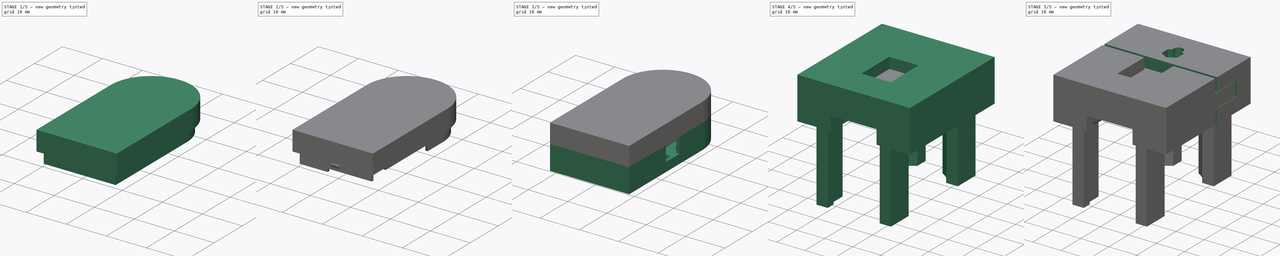
[diagram: build sequence overview — one tinted view per stage of 5, left to right]
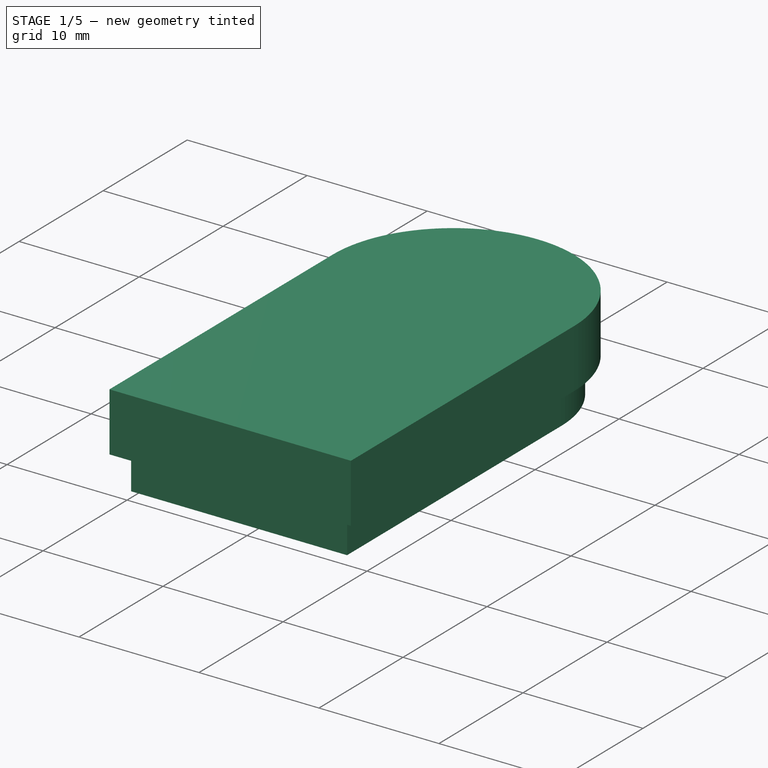
[diagram: stage 1 of 5 — iso view after this stage's code; geometry added in this stage tinted green]
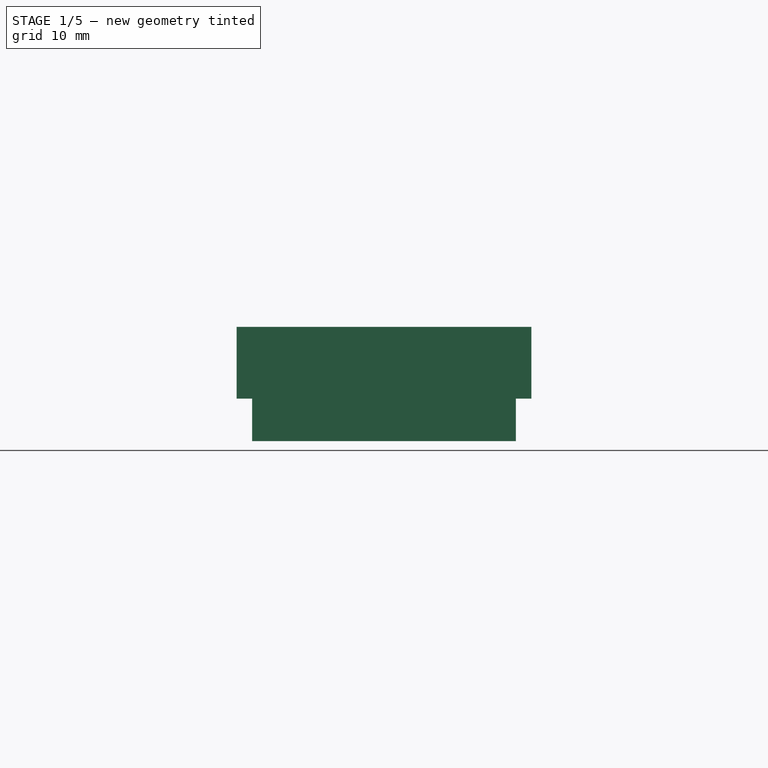
[diagram: stage 1 of 5 — front view after this stage's code; geometry added in this stage tinted green]
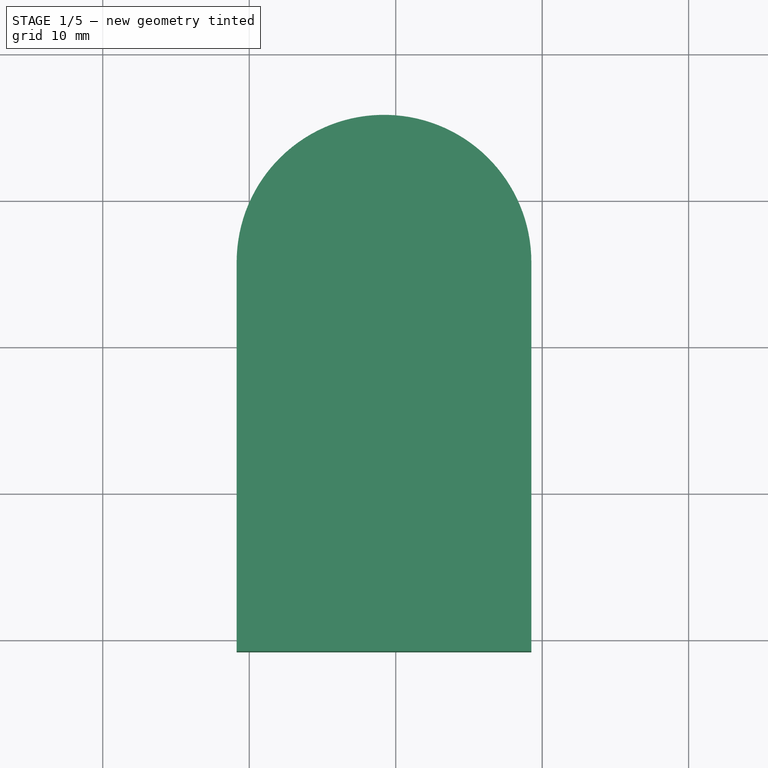
[diagram: stage 1 of 5 — top view after this stage's code; geometry added in this stage tinted green]
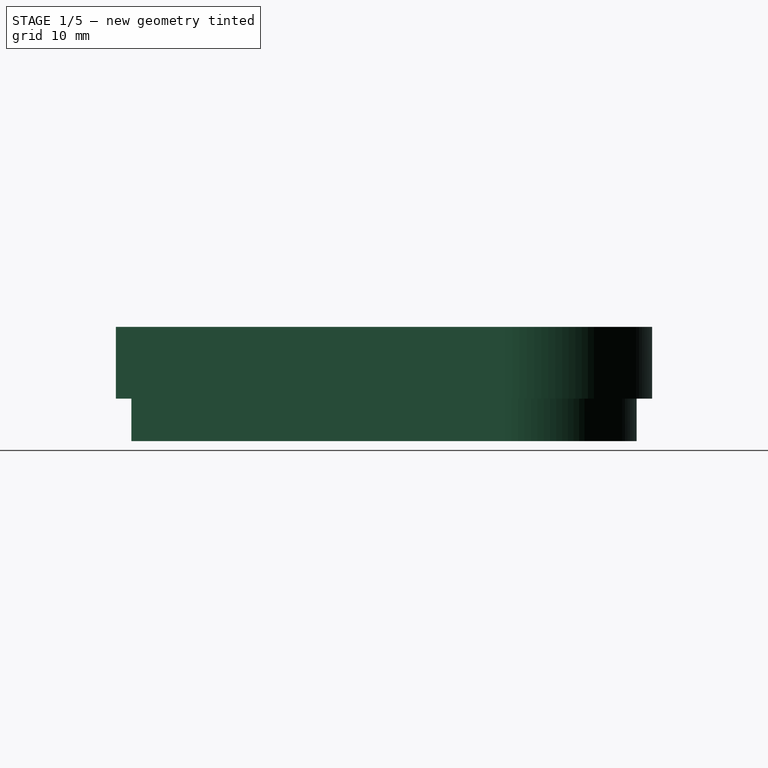
[diagram: stage 1 of 5 — right view after this stage's code; geometry added in this stage tinted green]
FCSTD DOCUMENT  (FreeCAD 0.20R29177 (Git))
Label: OpenAXES-programming-adapter
License: All rights reserved
LicenseURL: http://en.wikipedia.org/wiki/All_rights_reserved
objects: Sketcher::SketchObject×19, PartDesign::Pocket×12, PartDesign::Pad×7, PartDesign::Body×3, PartDesign::SubtractivePrism×2, PartDesign::ShapeBinder×2, Part::FeaturePython×2, Spreadsheet::Sheet×1, Part::Extrusion×1, App::Part×1
note: 69 computed .brp shape members not serialized (recipe doc carries the construction recipe); baked Part::Feature solids carry a one-line shape summary decoded from their .brp

FEATURE [Spreadsheet::Sheet] Spreadsheet  label="params"
  cells = A1=pcb_w; B1(pcb_w)=18; A2=pcb_h; B2(pcb_h)=34.5; A3=pcb_t; B3(pcb_t)=0.9; A4=pcb_clearance; B4(pcb_clearance)=0.4; A5=tab_w; B5(tab_w)=0.2; A6=wall_t; B6(wall_t)=0.86; A7=lid_wall_t; B7(lid_wall_t)=0.6; A8=lid_clearance; B8(lid_clearance)=0.2; A9=lid_depth; B9(lid_depth)==box_pocket_depth - pcb_t - 0.1; A10=imu_height; B10(imu_height)=8; A11=box_pocket_depth; B11(box_pocket_depth)=3.9; A12=lid_h; B12(lid_h)==imu_height - box_pocket_depth + vertical_t; A13=vertical_t; B13(vertical_t)=0.8; A14=programmer_clearance; B14(programmer_clearance)=0.2; A15=programmer_wall_width; B15(programmer_wall_width)=3; A16=programmer_adjust_width; B16(programmer_adjust_width)=1
FEATURE [Sketcher::SketchObject] Sketch
  FullyConstrained = true
  expr: Constraints[15] = Spreadsheet.pcb_h + Spreadsheet.pcb_clearance
  expr: Constraints[25] = Spreadsheet.wall_t
  expr: Constraints[26] = Spreadsheet.wall_t
  expr: Constraints[27] = Spreadsheet.wall_t
  expr: Constraints[8] = Spreadsheet.pcb_w + Spreadsheet.pcb_clearance
  sketch-geometry (9):
    g0: LineSegment StartX=1.8e-15 StartY=0 StartZ=0 EndX=18.4 EndY=0 EndZ=0
    g1: LineSegment StartX=18.4 StartY=0 StartZ=0 EndX=18.4 EndY=25.7 EndZ=0
    g2: LineSegment StartX=1.8e-15 StartY=0 StartZ=0 EndX=1.8e-15 EndY=25.7 EndZ=0
    g3: ArcOfCircle CenterX=9.2 CenterY=25.7 CenterZ=0 NormalX=0 NormalY=0 NormalZ=1 AngleXU=0 Radius=9.2 StartAngle=3.14645e-08 EndAngle=3.14159
    g4: LineSegment StartX=9.2 StartY=0 StartZ=0 EndX=9.2 EndY=34.9 EndZ=0
    g5: LineSegment StartX=-0.86 StartY=-0.86 StartZ=0 EndX=19.26 EndY=-0.86 EndZ=0
    g6: LineSegment StartX=19.26 StartY=-0.86 StartZ=0 EndX=19.26 EndY=25.7 EndZ=0
    g7: LineSegment StartX=-0.86 StartY=-0.86 StartZ=0 EndX=-0.86 EndY=25.7 EndZ=0
    g8: ArcOfCircle CenterX=9.2 CenterY=25.7 CenterZ=0 NormalX=0 NormalY=0 NormalZ=1 AngleXU=0 Radius=10.06 StartAngle=6.28319 EndAngle=9.42478
  constraints (29):
    c: Coincident(g0,g-1)
    c: Horizontal(g0)
    c: Coincident(g1,g0)
    c: Vertical(g1)
    c: Coincident(g2,g0)
    c: Vertical(g2)
    c: Coincident(g3,g2)
    c: Coincident(g3,g1)
    c: Distance(g0) = 18.4
    c: Tangent(g3,g2)
    c: Tangent(g3,g1)
    c: PointOnObject(g4,g0)
    c: PointOnObject(g4,g3)
    c: Vertical(g4)
    c: PointOnObject(g3,g4)
    c: Distance(g4) = 34.9
    c: Horizontal(g5)
    c: Coincident(g6,g5)
    c: Vertical(g6)
    c: Coincident(g7,g5)
    c: Vertical(g7)
    c: Coincident(g8,g7)
    c: Coincident(g8,g6)
    c: Tangent(g8,g7)
    c: Tangent(g8,g6)
    c: DistanceY(g5,g0) = 0.86
    c: DistanceX(g0,g5) = 0.86
    c: DistanceX(g5,g-1) = 0.86
    c: DistanceY(g1,g6) = 0
FEATURE [PartDesign::Pad] Pad
  Direction = (0,0,1)
  Length = 3.9
  Length2 = 2.3
  Profile = -> Sketch
  Type = 4
  expr: Length = Spreadsheet.box_pocket_depth
FEATURE [Sketcher::SketchObject] Sketch001
  FullyConstrained = true
  MapMode = 5
  Support = -> [XY_Plane001]
  expr: Constraints[14] = Spreadsheet.pcb_h + Spreadsheet.pcb_clearance
  expr: Constraints[8] = Spreadsheet.pcb_w + Spreadsheet.pcb_clearance
  sketch-geometry (5):
    g0: LineSegment StartX=5.33156e-11 StartY=25.7 StartZ=0 EndX=5.33156e-11 EndY=0 EndZ=0
    g1: LineSegment StartX=18.4 StartY=0 StartZ=0 EndX=18.4 EndY=25.7 EndZ=0
    g2: ArcOfCircle CenterX=9.2 CenterY=25.7 CenterZ=0 NormalX=0 NormalY=0 NormalZ=1 AngleXU=0 Radius=9.2 StartAngle=0 EndAngle=3.1416
    g3: LineSegment StartX=5.33156e-11 StartY=0 StartZ=0 EndX=18.4 EndY=0 EndZ=0
    g4: LineSegment StartX=9.2 StartY=34.9 StartZ=0 EndX=9.2 EndY=0 EndZ=0
  constraints (15):
    c: Vertical(g0)
    c: Vertical(g1)
    c: Coincident(g2,g0)
    c: Tangent(g2,g0)
    c: Coincident(g3,g0)
    c: Coincident(g3,g1)
    c: Horizontal(g3)
    c: Coincident(g-1,g0)
    c: DistanceX(g0,g1) = 18.4
    c: Tangent(g2,g1) = -1.5708
    c: PointOnObject(g4,g2)
    c: PointOnObject(g4,g3)
    c: Vertical(g4)
    c: PointOnObject(g2,g4)
    c: DistanceY(g4,g4) = 34.9
FEATURE [PartDesign::Pocket] Pocket
  BaseFeature = -> Pad
  Direction = (0,0,-1)
  Length = 0.01
  Length2 = 20
  Profile = -> Sketch001
  Type = 4
FEATURE [Sketcher::SketchObject] Sketch002
  ExternalGeometry = -> [Pocket]
  FullyConstrained = true
  MapMode = 5
  Placement = pos=(-0.86,0,0) rot=(0.57735,-0.57735,-0.57735;2.0944rad)
  Support = -> [Pocket]
  sketch-geometry (8):
    g0: LineSegment StartX=-18.2 StartY=-0.01 StartZ=0 EndX=-18.2 EndY=3.99 EndZ=0
    g1: LineSegment StartX=-18.2 StartY=3.99 StartZ=0 EndX=-9.3 EndY=3.99 EndZ=0
    g2: LineSegment StartX=-9.3 StartY=3.99 StartZ=0 EndX=-9.3 EndY=-0.01 EndZ=0
    g3: LineSegment StartX=-15 StartY=-1.19 StartZ=0 EndX=-12 EndY=-1.19 EndZ=0
    g4: LineSegment StartX=-12 StartY=-1.19 StartZ=0 EndX=-12 EndY=-0.01 EndZ=0
    g5: LineSegment StartX=-9.3 StartY=-0.01 StartZ=0 EndX=-12 EndY=-0.01 EndZ=0
    g6: LineSegment StartX=-18.2 StartY=-0.01 StartZ=0 EndX=-15 EndY=-0.01 EndZ=0
    g7: LineSegment StartX=-15 StartY=-0.01 StartZ=0 EndX=-15 EndY=-1.19 EndZ=0
  constraints (24):
    c: PointOnObject(g0,g-4)
    c: Vertical(g0)
    c: Coincident(g1,g0)
    c: Horizontal(g1)
    c: Coincident(g2,g1)
    c: PointOnObject(g2,g-4)
    c: Vertical(g2)
    c: DistanceX(g2,g-1) = 9.3
    c: DistanceX(g0,g-1) = 18.2
    c: DistanceY(g0,g0) = 4
    c: Horizontal(g3)
    c: Coincident(g4,g3)
    c: Vertical(g4)
    c: DistanceY(g3,g0) = 1.18  'bottom_clearance'
    c: DistanceX(g3,g3) = 3
    c: Coincident(g5,g2)
    c: Coincident(g5,g4)
    c: Horizontal(g5)
    c: Coincident(g6,g0)
    c: PointOnObject(g6,g-4)
    c: Coincident(g7,g6)
    c: Coincident(g7,g3)
    c: Vertical(g7)
    c: DistanceX(g3,g-4) = 12
FEATURE [Sketcher::SketchObject] Sketch003
  ExternalGeometry = -> [Pocket]
  FullyConstrained = true
  MapMode = 5
  Support = -> [XY_Plane001]
  sketch-geometry (24):
    g0: LineSegment StartX=17.4 StartY=10 StartZ=0 EndX=13.4 EndY=10 EndZ=0
    g1: LineSegment StartX=13.4 StartY=10 StartZ=0 EndX=13.4 EndY=0 EndZ=0
    g2: LineSegment StartX=13.4 StartY=0 StartZ=0 EndX=0.8 EndY=0 EndZ=0
    g3: LineSegment StartX=0.8 StartY=0 StartZ=0 EndX=0.8 EndY=4 EndZ=0
    g4: LineSegment StartX=0.8 StartY=4 StartZ=0 EndX=1.8e-15 EndY=4 EndZ=0
    g5: LineSegment StartX=1.8e-15 StartY=4 StartZ=0 EndX=0 EndY=17 EndZ=0
    g6: LineSegment StartX=0 StartY=17 StartZ=0 EndX=2 EndY=17 EndZ=0
    g7: LineSegment StartX=2 StartY=17 StartZ=0 EndX=2 EndY=21 EndZ=0
    g8: LineSegment StartX=2 StartY=21 StartZ=0 EndX=0 EndY=21 EndZ=0
    g9: LineSegment StartX=18.4 StartY=15.5 StartZ=0 EndX=15.4 EndY=15.5 EndZ=0
    g10: LineSegment StartX=15.4 StartY=15.5 StartZ=0 EndX=15.4 EndY=17 EndZ=0
    g11: LineSegment StartX=15.4 StartY=17 StartZ=0 EndX=18.4 EndY=17 EndZ=0
    g12: ArcOfCircle CenterX=9.2 CenterY=25.7 CenterZ=0 NormalX=0 NormalY=0 NormalZ=1 AngleXU=0 Radius=9.2 StartAngle=2.46457 EndAngle=3.1416
    g13: LineSegment StartX=2.02913 StartY=31.4636 StartZ=0 EndX=6.4 EndY=31.4636 EndZ=0
    g14: LineSegment StartX=6.4 StartY=31.4636 StartZ=0 EndX=6.4 EndY=34.4636 EndZ=0
    g15: LineSegment StartX=10.2 StartY=34.8455 StartZ=0 EndX=10.2 EndY=32.4455 EndZ=0
    g16: LineSegment StartX=10.2 StartY=32.4455 StartZ=0 EndX=15.4561 EndY=32.4455 EndZ=0
    g17: ArcOfCircle CenterX=9.2 CenterY=25.7 CenterZ=0 NormalX=0 NormalY=0 NormalZ=1 AngleXU=0 Radius=9.2 StartAngle=1.46189 EndAngle=1.88005
    g18: ArcOfCircle CenterX=9.2 CenterY=25.7 CenterZ=0 NormalX=0 NormalY=0 NormalZ=1 AngleXU=0 Radius=9.2 StartAngle=0 EndAngle=0.823024
    g19: LineSegment StartX=18.4 StartY=25.7 StartZ=0 EndX=18.4 EndY=17 EndZ=0
    g20: LineSegment StartX=5.33156e-11 StartY=25.7 StartZ=0 EndX=0 EndY=21 EndZ=0
    g21: LineSegment StartX=17.4 StartY=10 StartZ=0 EndX=17.4 EndY=2 EndZ=0
    g22: LineSegment StartX=17.4 StartY=2 StartZ=0 EndX=18.4 EndY=2 EndZ=0
    g23: LineSegment StartX=18.4 StartY=15.5 StartZ=0 EndX=18.4 EndY=2 EndZ=0
  constraints (70):
    c: Horizontal(g0)
    c: Coincident(g1,g0)
    c: PointOnObject(g1,g-4)
    c: Vertical(g1)
    c: Coincident(g2,g1)
    c: PointOnObject(g2,g-4)
    c: Coincident(g3,g2)
    c: Vertical(g3)
    c: Coincident(g4,g3)
    c: PointOnObject(g4,g-5)
    c: Horizontal(g4)
    c: Coincident(g5,g4)
    c: PointOnObject(g5,g-5)
    c: Coincident(g6,g5)
    c: Horizontal(g6)
    c: Coincident(g7,g6)
    c: Vertical(g7)
    c: Coincident(g8,g7)
    c: PointOnObject(g8,g-5)
    c: Horizontal(g8)
    c: PointOnObject(g9,g-3)
    c: Horizontal(g9)
    c: Coincident(g10,g9)
    c: Vertical(g10)
    c: Coincident(g11,g10)
    c: PointOnObject(g11,g-3)
    c: Horizontal(g11)
    c: Coincident(g12,g-6)
    c: Coincident(g12,g-6)
    c: Coincident(g13,g12)
    c: Horizontal(g13)
    c: Coincident(g14,g13)
    c: PointOnObject(g14,g-6)
    c: Vertical(g14)
    c: Vertical(g15)
    c: Coincident(g16,g15)
    c: Horizontal(g16)
    c: Coincident(g17,g12)
    c: Coincident(g17,g14)
    c: Coincident(g17,g15)
    c: Coincident(g18,g12)
    c: Coincident(g18,g16)
    c: Coincident(g18,g-6)
    c: Coincident(g19,g18)
    c: Coincident(g19,g11)
    c: DistanceX(g1,g-4) = 5
    c: DistanceY(g-4,g0) = 10
    c: DistanceX(g-1,g2) = 0.8
    c: DistanceY(g-1,g4) = 4
    c: DistanceY(g5,g8) = 4
    c: Coincident(g20,g12)
    c: Coincident(g20,g8)
    c: DistanceX(g5,g6) = 2
    c: DistanceY(g-4,g9) = 15.5
    c: DistanceY(g-1,g5) = 17
    c: DistanceY(g1,g11) = 17
    c: DistanceX(g10,g11) = 3
    c: DistanceX(g12,g15) = 1
    c: DistanceY(g15,g15) = 2.4
    c: DistanceX(g13,g12) = 2.8
    c: DistanceY(g13,g14) = 3
    c: Vertical(g21)
    c: Coincident(g0,g21)
    c: DistanceX(g21,g-4) = 1
    c: Coincident(g22,g21)
    c: PointOnObject(g22,g-3)
    c: Horizontal(g22)
    c: Coincident(g23,g9)
    c: Coincident(g23,g22)
    c: DistanceY(g-4,g21) = 2
FEATURE [PartDesign::Pocket] Pocket001
  BaseFeature = -> Pocket
  Direction = (0,0,-1)
  Length = 1.35
  Length2 = 100
  Profile = -> Sketch003
  Type = 0
FEATURE [PartDesign::Body] Body  label="IMU-Case-Dummy-Bottom"
  Group = -> [Sketch,Pad,Sketch001,Pocket,Sketch002,Sketch003,Pocket001,Pad001,Pocket002,Sketch004,Pocket003,Sketch006,Pocket004,Sketch007,Prism,Prism001]
  Origin = -> Origin001
  Tip = -> Prism001
FEATURE [PartDesign::ShapeBinder] ReferencePocket001
  Support = -> [Pocket001]
  TraceSupport = false
FEATURE [Sketcher::SketchObject] Sketch008
  ExternalGeometry = -> [ReferencePocket001]
  FullyConstrained = true
  MapMode = 5
  Placement = pos=(0,0,3.9) rot=(0,0,1;0rad)
  Support = -> [ReferencePocket001]
  expr: Constraints[13] = Spreadsheet.lid_clearance
  expr: Constraints[14] = Spreadsheet.lid_clearance
  expr: Constraints[25] = Spreadsheet.lid_wall_t
  expr: Constraints[26] = Spreadsheet.lid_wall_t
  sketch-geometry (12):
    g0: LineSegment StartX=0 StartY=0 StartZ=0 EndX=18.4 EndY=0 EndZ=0
    g1: LineSegment StartX=18.4 StartY=0 StartZ=0 EndX=18.4 EndY=25.7 EndZ=0
    g2: LineSegment StartX=0 StartY=0 StartZ=0 EndX=5.33156e-11 EndY=25.7 EndZ=0
    g3: ArcOfCircle CenterX=9.2 CenterY=25.7 CenterZ=0 NormalX=0 NormalY=0 NormalZ=1 AngleXU=0 Radius=9.2 StartAngle=3.40445e-06 EndAngle=3.14159
    g4: LineSegment StartX=0.2 StartY=0.2 StartZ=0 EndX=18.2 EndY=0.2 EndZ=0
    g5: LineSegment StartX=18.2 StartY=0.2 StartZ=0 EndX=18.2 EndY=25.7 EndZ=0
    g6: LineSegment StartX=0.2 StartY=0.2 StartZ=0 EndX=0.2 EndY=25.7 EndZ=0
    g7: ArcOfCircle CenterX=9.2 CenterY=25.7 CenterZ=0 NormalX=0 NormalY=0 NormalZ=1 AngleXU=0 Radius=9 StartAngle=0 EndAngle=3.14159
    g8: LineSegment StartX=0.8 StartY=0.8 StartZ=0 EndX=17.6 EndY=0.8 EndZ=0
    g9: LineSegment StartX=17.6 StartY=0.8 StartZ=0 EndX=17.6 EndY=25.7 EndZ=0
    g10: LineSegment StartX=0.8 StartY=0.8 StartZ=0 EndX=0.8 EndY=25.7 EndZ=0
    g11: ArcOfCircle CenterX=9.2 CenterY=25.7 CenterZ=0 NormalX=0 NormalY=0 NormalZ=1 AngleXU=0 Radius=8.4 StartAngle=0 EndAngle=3.14159
  constraints (28):
    c: Coincident(g0,g-1)
    c: Coincident(g0,g-4)
    c: Coincident(g1,g0)
    c: Coincident(g1,g-6)
    c: Coincident(g2,g-1)
    c: Coincident(g2,g-5)
    c: Coincident(g3,g1)
    c: Horizontal(g4)
    c: Coincident(g5,g4)
    c: Vertical(g5)
    c: Coincident(g6,g4)
    c: Vertical(g6)
    c: Tangent(g7,g5) = -1.5708
    c: DistanceX(g0,g4) = 0.2
    c: DistanceY(g0,g4) = 0.2
    c: Tangent(g7,g6) = 1.5708
    c: Coincident(g3,g7)
    c: Horizontal(g8)
    c: Coincident(g9,g8)
    c: Vertical(g9)
    c: Coincident(g10,g8)
    c: Vertical(g10)
    c: Tangent(g11,g10) = 1.5708
    c: Tangent(g11,g9) = -1.5708
    c: Coincident(g11,g3)
    c: DistanceX(g4,g8) = 0.6
    c: DistanceY(g4,g8) = 0.6
    c: Tangent(g3,g2) = 1.5708
FEATURE [PartDesign::Pad] Pad002
  Direction = (1,1,1)
  Length = 2.9
  Length2 = 100
  Profile = -> Sketch008
  Reversed = true
  Type = 0
  expr: Length = Spreadsheet.lid_depth
FEATURE [Sketcher::SketchObject] Sketch009
  ExternalGeometry = -> [Sketch008,ReferencePocket001,Pad002]
  FullyConstrained = true
  MapMode = 5
  Placement = pos=(0,0,3.9) rot=(0,0,1;0rad)
  Support = -> [Pad002]
  sketch-geometry (8):
    g0: LineSegment StartX=-0.86 StartY=-0.86 StartZ=0 EndX=19.26 EndY=-0.86 EndZ=0
    g1: LineSegment StartX=19.26 StartY=-0.86 StartZ=0 EndX=19.26 EndY=25.7 EndZ=0
    g2: LineSegment StartX=-0.86 StartY=-0.86 StartZ=0 EndX=-0.86 EndY=25.7 EndZ=0
    g3: ArcOfCircle CenterX=9.2 CenterY=25.7 CenterZ=0 NormalX=0 NormalY=0 NormalZ=1 AngleXU=0 Radius=10.06 StartAngle=3.15076e-09 EndAngle=3.14159
    g4: LineSegment StartX=0.8 StartY=0.8 StartZ=0 EndX=17.6 EndY=0.8 EndZ=0
    g5: LineSegment StartX=17.6 StartY=0.8 StartZ=0 EndX=17.6 EndY=25.7 EndZ=0
    g6: LineSegment StartX=0.8 StartY=0.8 StartZ=0 EndX=0.8 EndY=25.7 EndZ=0
    g7: ArcOfCircle CenterX=9.2 CenterY=25.7 CenterZ=0 NormalX=0 NormalY=0 NormalZ=1 AngleXU=0 Radius=8.4 StartAngle=0 EndAngle=3.14159
  constraints (16):
    c: Coincident(g0,g-5)
    c: Coincident(g0,g-6)
    c: Coincident(g1,g0)
    c: Coincident(g1,g-7)
    c: Coincident(g2,g0)
    c: Coincident(g2,g-8)
    c: Coincident(g3,g1)
    c: Tangent(g3,g2) = 1.5708
    c: Coincident(g4,g-3)
    c: Coincident(g4,g-4)
    c: Coincident(g5,g4)
    c: Coincident(g5,g-9)
    c: Coincident(g6,g4)
    c: Coincident(g6,g-10)
    c: Coincident(g7,g5)
    c: Tangent(g7,g6) = 1.5708
FEATURE [PartDesign::Pad] Pad003
  BaseFeature = -> Pad002
  Direction = (1,1,1)
  Length = 4.9
  Length2 = 100
  Profile = -> Sketch009
  Type = 0
  expr: Length = Spreadsheet.lid_h
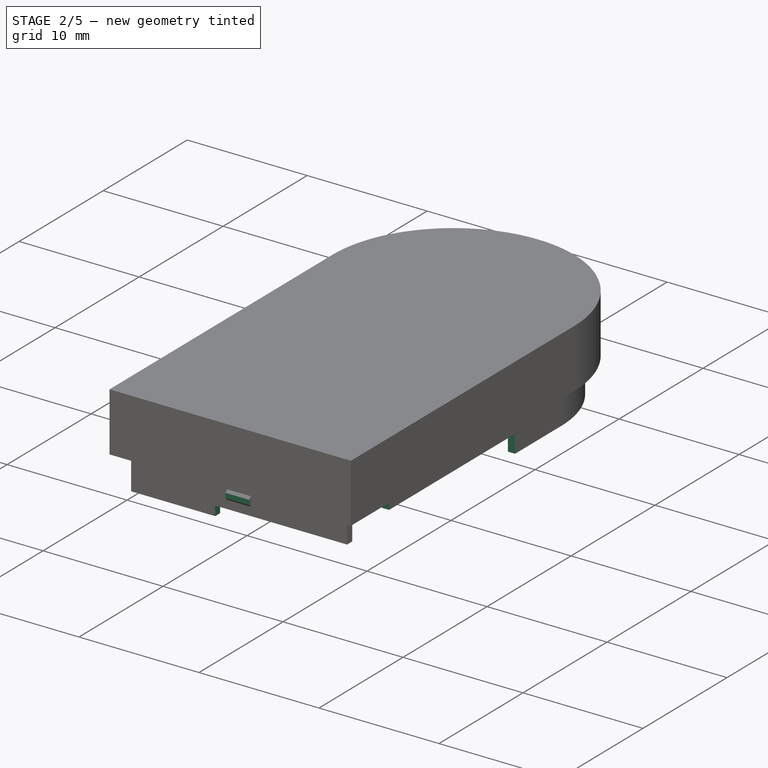
[diagram: stage 2 of 5 — iso view after this stage's code; geometry added in this stage tinted green]
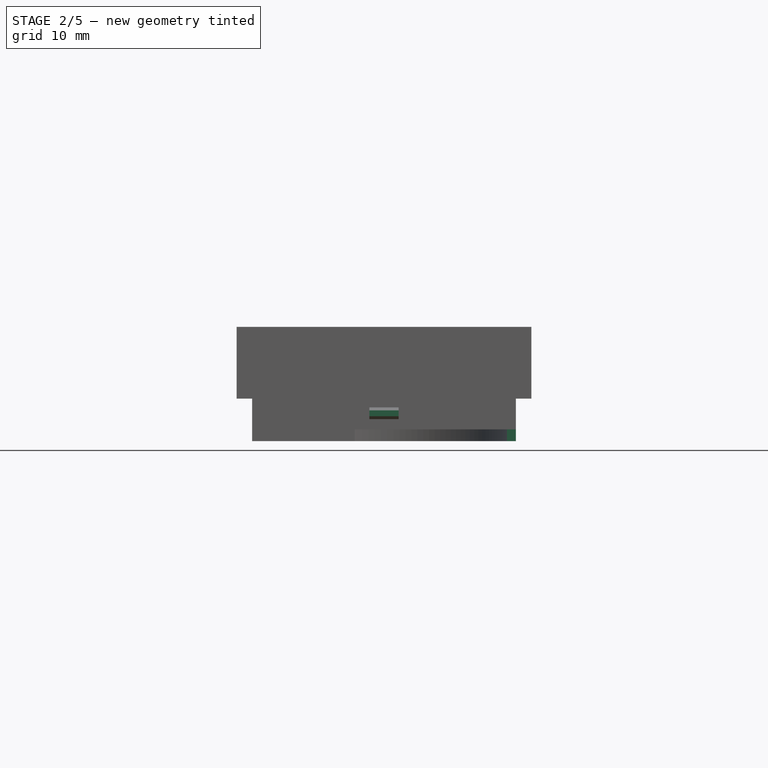
[diagram: stage 2 of 5 — front view after this stage's code; geometry added in this stage tinted green]
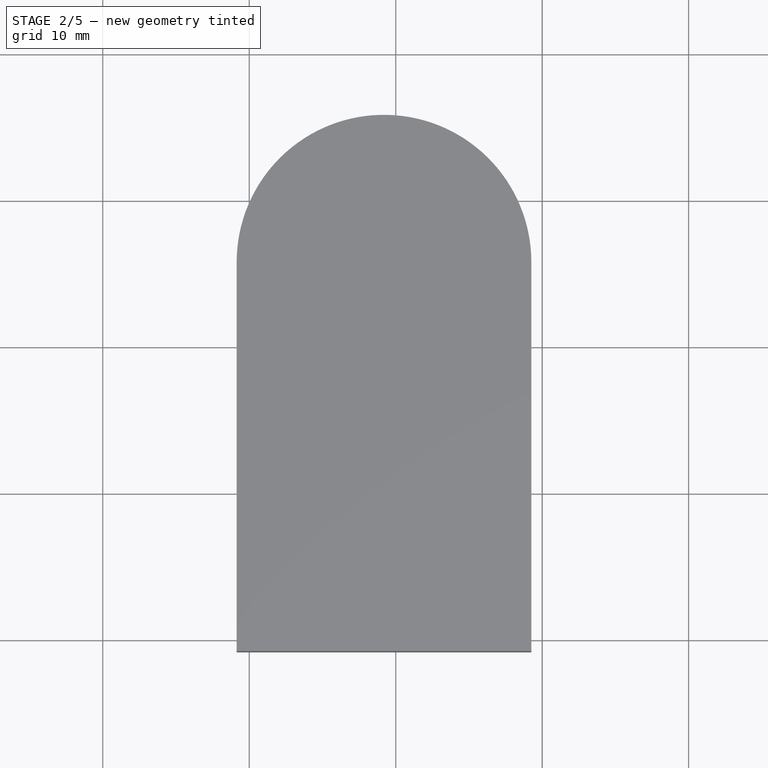
[diagram: stage 2 of 5 — top view after this stage's code; geometry added in this stage tinted green]
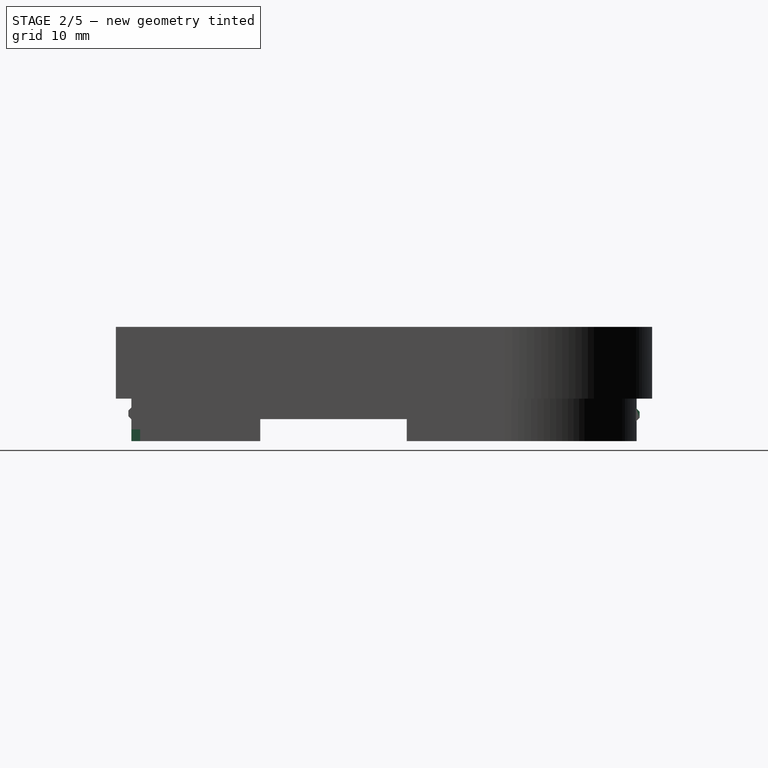
[diagram: stage 2 of 5 — right view after this stage's code; geometry added in this stage tinted green]
FEATURE [PartDesign::Pocket] Pocket005
  BaseFeature = -> Pad003
  Direction = (1,1,1)
  Length = 4.1
  Length2 = 100
  Profile = -> Pad003 [Face16]
  Type = 0
  expr: Length = Spreadsheet.imu_height - Spreadsheet.box_pocket_depth
FEATURE [Sketcher::SketchObject] Sketch010
  ExternalGeometry = -> [Pocket005]
  FullyConstrained = true
  MapMode = 5
  Placement = pos=(18.2,0,0) rot=(0.57735,0.57735,0.57735;2.0944rad)
  Support = -> [Pocket005]
  expr: Constraints[9] = Spreadsheet.lid_wall_t + 0.01
  sketch-geometry (12):
    g0: LineSegment StartX=0.81 StartY=1 StartZ=0 EndX=5.2 EndY=1 EndZ=0
    g1: LineSegment StartX=5.2 StartY=2.5 StartZ=0 EndX=5.2 EndY=5.5 EndZ=0
    g2: LineSegment StartX=5.2 StartY=5.5 StartZ=0 EndX=0.81 EndY=5.5 EndZ=0
    g3: LineSegment StartX=0.81 StartY=5.5 StartZ=0 EndX=0.81 EndY=1.8 EndZ=0
    g4: LineSegment StartX=0.81 StartY=1 StartZ=0 EndX=0.2 EndY=1 EndZ=0
    g5: LineSegment StartX=5.2 StartY=1 StartZ=0 EndX=20.2 EndY=1 EndZ=0
    g6: LineSegment StartX=20.2 StartY=1 StartZ=0 EndX=20.2 EndY=2.5 EndZ=0
    g7: LineSegment StartX=20.2 StartY=2.5 StartZ=0 EndX=5.2 EndY=2.5 EndZ=0
    g8: LineSegment StartX=5.2 StartY=2.5 StartZ=0 EndX=5.2 EndY=1 EndZ=0
    g9: LineSegment StartX=0.81 StartY=1.8 StartZ=0 EndX=0.2 EndY=1.8 EndZ=0
    g10: LineSegment StartX=0.2 StartY=1.8 StartZ=0 EndX=0.2 EndY=1 EndZ=0
    g11: LineSegment StartX=0.81 StartY=1.8 StartZ=0 EndX=0.81 EndY=1 EndZ=0
  constraints (33):
    c: Horizontal(g0)
    c: Vertical(g1)
    c: Coincident(g2,g1)
    c: Horizontal(g2)
    c: Coincident(g3,g2)
    c: Vertical(g3)
    c: Coincident(g4,g0)
    c: Coincident(g4,g-3)
    c: Horizontal(g4)
    c: DistanceX(g4,g0) = 0.61
    c: DistanceX(g4,g0) = 5
    c: Horizontal(g5)
    c: Coincident(g6,g5)
    c: Vertical(g6)
    c: Coincident(g7,g6)
    c: Horizontal(g7)
    c: DistanceX(g4,g5) = 20
    c: DistanceY(g-1,g2) = 5.5
    c: DistanceY(g-1,g7) = 2.5
    c: Coincident(g8,g1)
    c: Coincident(g8,g0)
    c: Vertical(g8)
    c: Coincident(g7,g1)
    c: Coincident(g5,g0)
    c: Coincident(g9,g3)
    c: Horizontal(g9)
    c: Coincident(g10,g9)
    c: Coincident(g10,g4)
    c: Vertical(g10)
    c: DistanceY(g10,g9) = 0.8
    c: Coincident(g11,g3)
    c: Coincident(g11,g0)
    c: Vertical(g11)
FEATURE [PartDesign::Pocket] Pocket006
  BaseFeature = -> Pocket005
  Direction = (1,1,1)
  Length = 11
  Length2 = 100
  Profile = -> Sketch010
  Type = 0
FEATURE [Sketcher::SketchObject] Sketch011
  FullyConstrained = true
  MapMode = 5
  Placement = pos=(0.2,0,0) rot=(0.57735,-0.57735,-0.57735;2.0944rad)
  Support = -> [Pocket006]
  sketch-geometry (4):
    g0: LineSegment StartX=-19 StartY=0 StartZ=0 EndX=-9 EndY=0 EndZ=0
    g1: LineSegment StartX=-9 StartY=0 StartZ=0 EndX=-9 EndY=3.6 EndZ=0
    g2: LineSegment StartX=-9 StartY=3.6 StartZ=0 EndX=-19 EndY=3.6 EndZ=0
    g3: LineSegment StartX=-19 StartY=3.6 StartZ=0 EndX=-19 EndY=0 EndZ=0
  constraints (12):
    c: PointOnObject(g0,g-1)
    c: PointOnObject(g0,g-1)
    c: Coincident(g1,g0)
    c: Vertical(g1)
    c: Coincident(g2,g1)
    c: Horizontal(g2)
    c: Coincident(g3,g2)
    c: Coincident(g3,g0)
    c: Vertical(g3)
    c: DistanceX(g0,g-1) = 9
    c: DistanceX(g0,g-1) = 19
    c: DistanceY(g0,g2) = 3.6
FEATURE [PartDesign::Pocket] Pocket007
  BaseFeature = -> Pocket006
  Direction = (1,1,1)
  Length = 5
  Length2 = 100
  Profile = -> Sketch011
  Type = 0
FEATURE [Sketcher::SketchObject] Sketch012
  AttachmentOffset = pos=(0,0,-10) rot=(0,0,1;0rad)
  ExternalGeometry = -> [Pocket007]
  FullyConstrained = true
  MapMode = 5
  Placement = pos=(10.2,0,0) rot=(0.57735,-0.57735,-0.57735;2.0944rad)
  Support = -> [Pocket007]
  expr: .AttachmentOffset.Base.z = -Spreadsheet.pcb_w / 2 - 1
  sketch-geometry (11):
    g0: LineSegment StartX=-0.2 StartY=2.5 StartZ=0 EndX=0 EndY=2.7 EndZ=0
    g1: LineSegment StartX=0 StartY=2.7 StartZ=0 EndX=0 EndY=3.1 EndZ=0
    g2: LineSegment StartX=0 StartY=3.1 StartZ=0 EndX=-0.2 EndY=3.3 EndZ=0
    g3: LineSegment StartX=-0.2 StartY=3.3 StartZ=0 EndX=-0.2 EndY=2.5 EndZ=0
    g4: LineSegment StartX=-34.7 StartY=0.9 StartZ=0 EndX=-34.7 EndY=3.9 EndZ=0
    g5: LineSegment StartX=-34.9 StartY=2.6 StartZ=0 EndX=-34.9 EndY=3 EndZ=0
    g6: LineSegment StartX=-34.9 StartY=3 StartZ=0 EndX=-34.5 EndY=3.4 EndZ=0
    g7: LineSegment StartX=-34.5 StartY=3.4 StartZ=0 EndX=-34.5 EndY=2.2 EndZ=0
    g8: LineSegment StartX=-34.9 StartY=2.6 StartZ=0 EndX=-34.5 EndY=2.2 EndZ=0
    g9: GeomPoint X=-34.9 Y=2.8 Z=0
    g10: GeomPoint X=0 Y=2.9 Z=0
  constraints (29):
    c: Coincident(g1,g0)
    c: Vertical(g1)
    c: Coincident(g2,g1)
    c: PointOnObject(g2,g-3)
    c: Coincident(g3,g2)
    c: Coincident(g3,g0)
    c: Angle(g3,g2) = 0.785398
    c: DistanceX(g0,g0) = 0.2
    c: Vertical(g4)
    c: DistanceY(g4,g4) = 3
    c: Vertical(g5)
    c: Coincident(g6,g5)
    c: Coincident(g7,g6)
    c: Vertical(g7)
    c: Coincident(g8,g5)
    c: Coincident(g8,g7)
    c: Angle(g6,g7) = 0.785398
    c: DistanceX(g4,g7) = 0.2
    c: DistanceX(g5,g4) = 0.2
    c: DistanceY(g5,g5) = 0.4
    c: Coincident(g4,g-4)
    c: Angle(g7,g8) = 0.785398
    c: Symmetric(g5,g5,g9)
    c: DistanceY(g9,g4) = 1.1
    c: PointOnObject(g0,g-3)
    c: DistanceY(g0,g1) = 0.4
    c: Angle(g1,g0) = 2.35619
    c: DistanceY(g10,g-3) = 1
    c: Symmetric(g1,g1,g10)
FEATURE [PartDesign::Pad] Pad004
  BaseFeature = -> Pocket007
  Direction = (1,1,1)
  Length = 2
  Length2 = 100
  Profile = -> Sketch012
  Type = 0
FEATURE [PartDesign::Body] Body001  label="IMU-Case-Dummy-Top"
  Group = -> [ReferencePocket001,Sketch008,Pad002,Sketch009,Pad003,Pocket005,Sketch010,Pocket006,Sketch011,Pocket007,Sketch012,Pad004]
  Origin = -> Origin002
  Tip = -> Pad004
FEATURE [App::Part] Part  label="IMU-Case-Dummy"
  Group = -> [Body,Body001]
  Origin = -> Origin
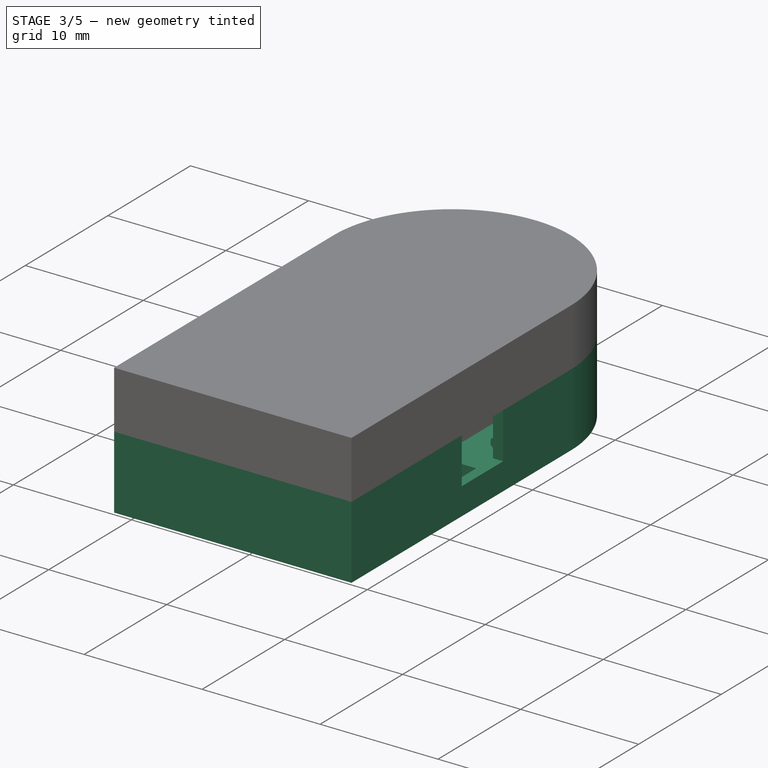
[diagram: stage 3 of 5 — iso view after this stage's code; geometry added in this stage tinted green]
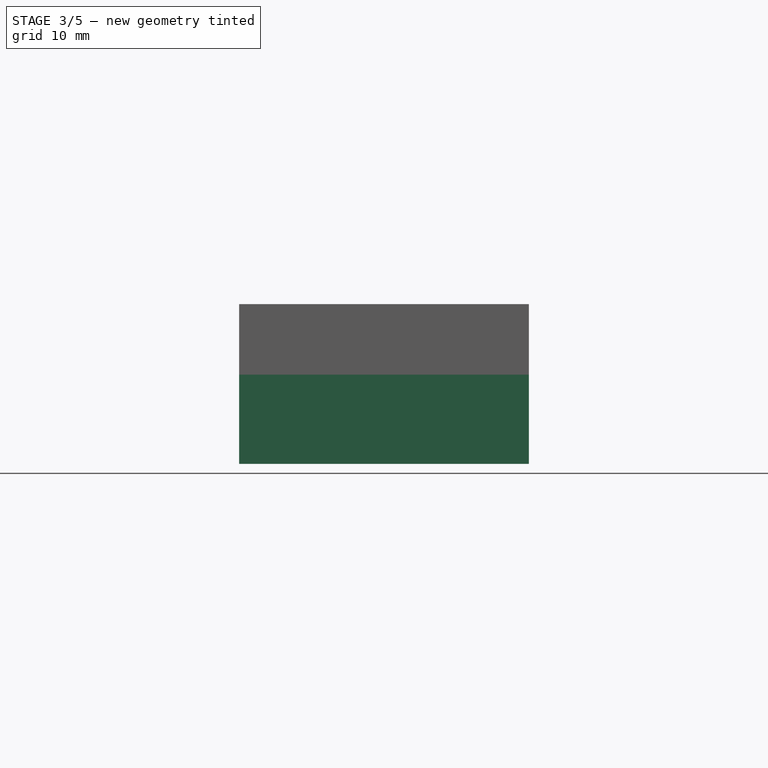
[diagram: stage 3 of 5 — front view after this stage's code; geometry added in this stage tinted green]
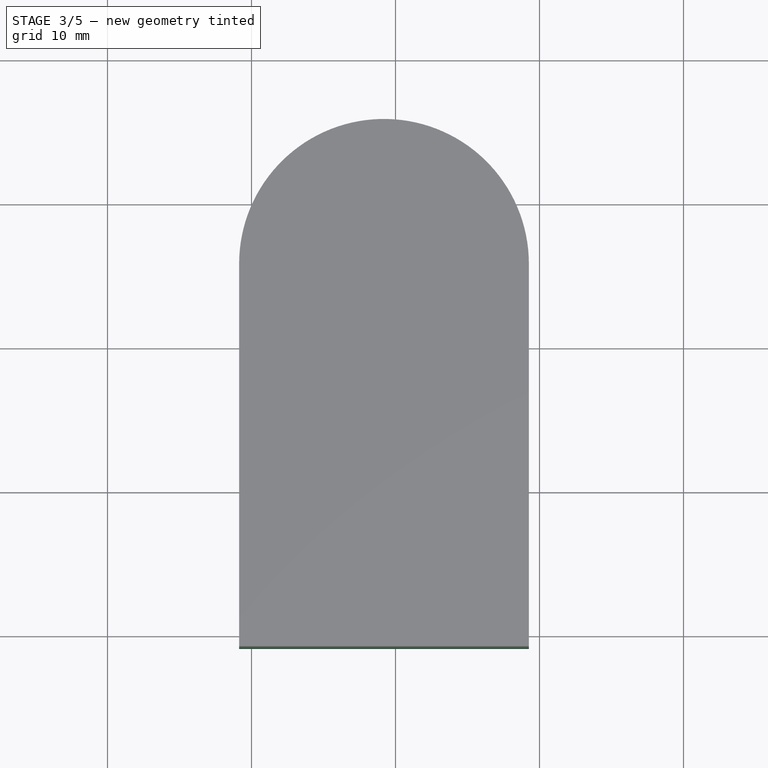
[diagram: stage 3 of 5 — top view after this stage's code; geometry added in this stage tinted green]
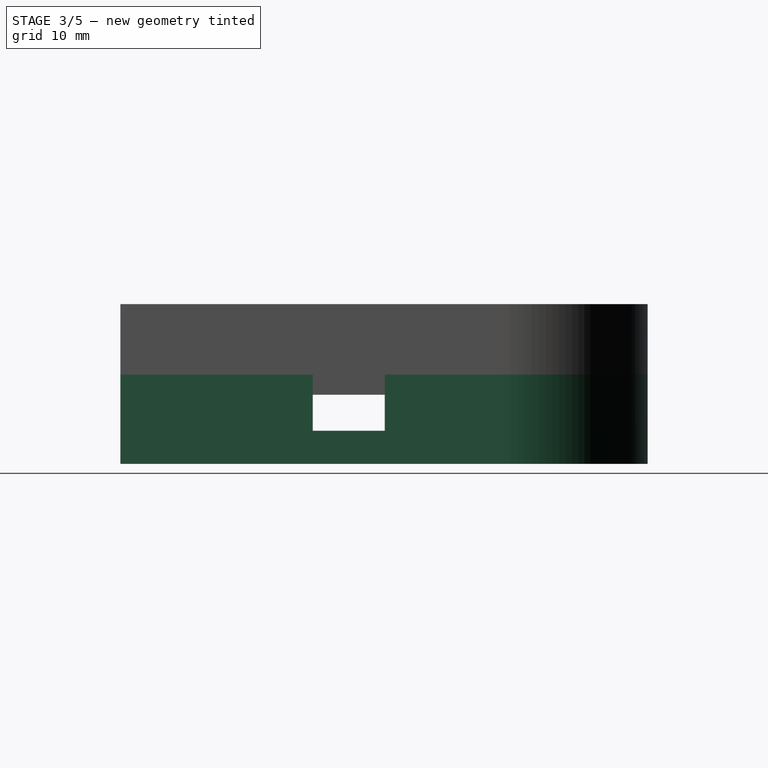
[diagram: stage 3 of 5 — right view after this stage's code; geometry added in this stage tinted green]
FEATURE [Sketcher::SketchObject] Sketch007
  AttachmentOffset = pos=(0,0,8) rot=(0,0,1;0rad)
  ExternalGeometry = -> [Pocket001]
  FullyConstrained = true
  MapMode = 5
  Placement = pos=(0,8,-1.8e-15) rot=(0,0.707107,0.707107;3.14159rad)
  Support = -> [Pocket001]
  expr: Constraints[13] = Spreadsheet.tab_w
  sketch-geometry (10):
    g0: LineSegment StartX=-18.4 StartY=3.9 StartZ=0 EndX=-5.33156e-11 EndY=3.9 EndZ=0
    g1: LineSegment StartX=-9.2 StartY=3.9 StartZ=0 EndX=-9.2 EndY=0 EndZ=0
    g2: LineSegment StartX=-5.33156e-11 StartY=0.79 StartZ=0 EndX=-0.2 EndY=0.99 EndZ=0
    g3: LineSegment StartX=-0.2 StartY=0.99 StartZ=0 EndX=-0.2 EndY=1.39 EndZ=0
    g4: LineSegment StartX=-0.2 StartY=1.39 StartZ=0 EndX=-5.33156e-11 EndY=1.59 EndZ=0
    g5: LineSegment StartX=-5.33156e-11 StartY=1.59 StartZ=0 EndX=-5.33156e-11 EndY=0.79 EndZ=0
    g6: LineSegment StartX=-18.4 StartY=1.59 StartZ=0 EndX=-18.2 EndY=1.39 EndZ=0
    g7: LineSegment StartX=-18.2 StartY=1.39 StartZ=0 EndX=-18.2 EndY=0.99 EndZ=0
    g8: LineSegment StartX=-18.2 StartY=0.99 StartZ=0 EndX=-18.4 EndY=0.79 EndZ=0
    g9: LineSegment StartX=-18.4 StartY=1.59 StartZ=0 EndX=-18.4 EndY=0.79 EndZ=0
  constraints (25):
    c: Coincident(g0,g-4)
    c: Coincident(g0,g-3)
    c: PointOnObject(g1,g-1)
    c: Vertical(g1)
    c: Symmetric(g0,g0,g1)
    c: PointOnObject(g2,g-3)
    c: Coincident(g3,g2)
    c: Vertical(g3)
    c: Coincident(g4,g3)
    c: PointOnObject(g4,g-3)
    c: DistanceY(g-3,g2) = 0.8
    c: Angle(g-3,g2) = 0.785398
    c: Angle(g-3,g4) = 2.35619
    c: DistanceX(g2,g2) = 0.2
    c: DistanceY(g2,g3) = 0.4
    c: Coincident(g5,g4)
    c: Coincident(g5,g2)
    c: Coincident(g7,g6)
    c: Coincident(g8,g7)
    c: Coincident(g9,g6)
    c: Coincident(g9,g8)
    c: Symmetric(g6,g4,g1)
    c: Symmetric(g6,g3,g1)
    c: Symmetric(g2,g7,g1)
    c: Symmetric(g8,g2,g1)
FEATURE [PartDesign::Pad] Pad001
  BaseFeature = -> Pocket001
  Direction = (0,1,-2e-16)
  Length = 12
  Length2 = 100
  Profile = -> Sketch007
  Type = 0
FEATURE [PartDesign::Pocket] Pocket002
  BaseFeature = -> Pad001
  Direction = (1,0,0)
  Length = 5
  Length2 = 100
  Profile = -> Sketch002
  Type = 0
FEATURE [Sketcher::SketchObject] Sketch004
  ExternalGeometry = -> [Pocket002]
  FullyConstrained = true
  MapMode = 5
  Placement = pos=(19.26,0,0) rot=(0.57735,0.57735,0.57735;2.0944rad)
  Support = -> [Pocket002]
  sketch-geometry (5):
    g0: LineSegment StartX=17.5 StartY=0 StartZ=0 EndX=17.5 EndY=4 EndZ=0
    g1: LineSegment StartX=17.5 StartY=4 StartZ=0 EndX=12.5 EndY=4 EndZ=0
    g2: LineSegment StartX=12.5 StartY=4 StartZ=0 EndX=12.5 EndY=0 EndZ=0
    g3: LineSegment StartX=12.5 StartY=0 StartZ=0 EndX=0 EndY=0 EndZ=0
    g4: LineSegment StartX=17.5 StartY=0 StartZ=0 EndX=12.5 EndY=0 EndZ=0
  constraints (14):
    c: PointOnObject(g0,g-1)
    c: DistanceX(g-1,g0) = 17.5
    c: Vertical(g0)
    c: Coincident(g1,g0)
    c: Horizontal(g1)
    c: Coincident(g2,g1)
    c: Vertical(g2)
    c: DistanceX(g-1,g2) = 12.5
    c: DistanceY(g0,g0) = 4
    c: Coincident(g3,g2)
    c: Coincident(g3,g-1)
    c: Coincident(g4,g0)
    c: Horizontal(g4)
    c: Coincident(g3,g4)
FEATURE [PartDesign::Pocket] Pocket003
  BaseFeature = -> Pocket002
  Direction = (-1,0,0)
  Length = 5
  Length2 = 100
  Profile = -> Sketch004
  Type = 0
FEATURE [Sketcher::SketchObject] Sketch006
  FullyConstrained = true
  MapMode = 5
  Placement = pos=(0,0,-2.3) rot=(1,0,0;3.14159rad)
  Support = -> [Pocket003]
  sketch-geometry (8):
    g0: LineSegment StartX=0.5 StartY=-5 StartZ=0 EndX=5 EndY=-5 EndZ=0
    g1: LineSegment StartX=5 StartY=-5 StartZ=0 EndX=5 EndY=-10.5 EndZ=0
    g2: LineSegment StartX=5 StartY=-10.5 StartZ=0 EndX=0.5 EndY=-10.5 EndZ=0
    g3: LineSegment StartX=0.5 StartY=-10.5 StartZ=0 EndX=0.5 EndY=-5 EndZ=0
    g4: LineSegment StartX=9.7 StartY=-15.3 StartZ=0 EndX=13.4 EndY=-15.3 EndZ=0
    g5: LineSegment StartX=13.4 StartY=-15.3 StartZ=0 EndX=13.4 EndY=-18 EndZ=0
    g6: LineSegment StartX=13.4 StartY=-18 StartZ=0 EndX=9.7 EndY=-18 EndZ=0
    g7: LineSegment StartX=9.7 StartY=-18 StartZ=0 EndX=9.7 EndY=-15.3 EndZ=0
  constraints (24):
    c: Horizontal(g0)
    c: DistanceY(g0,g-1) = 5
    c: Coincident(g1,g0)
    c: Vertical(g1)
    c: Coincident(g2,g1)
    c: Horizontal(g2)
    c: Coincident(g3,g2)
    c: Coincident(g3,g0)
    c: Vertical(g3)
    c: DistanceY(g2,g-1) = 10.5
    c: DistanceX(g2,g1) = 4.5
    c: Horizontal(g4)
    c: Vertical(g5)
    c: Coincident(g6,g5)
    c: Horizontal(g6)
    c: Coincident(g7,g6)
    c: Vertical(g7)
    c: DistanceY(g6,g4) = 2.7
    c: DistanceX(g-1,g0) = 0.5
    c: Coincident(g5,g4)
    c: Coincident(g7,g4)
    c: DistanceY(g4,g-1) = 15.3
    c: DistanceX(g-1,g4) = 9.7
    c: DistanceX(g6,g5) = 3.7
FEATURE [PartDesign::Pocket] Pocket004
  BaseFeature = -> Pocket003
  Direction = (0,0,1)
  Length = 5
  Length2 = 100
  Profile = -> Sketch006
  Type = 0
FEATURE [PartDesign::SubtractivePrism] Prism
  AttacherType = Attacher::AttachEngine3D
  AttachmentOffset = pos=(-9,1,7.5) rot=(0,0,1;0rad)
  BaseFeature = -> Pocket004
  Circumradius = 0.4
  FirstAngle = 0
  Height = 3
  MapMode = 6
  Placement = pos=(7.49997,34.7,2.9) rot=(-0.577352,0.57735,-0.57735;2.09439rad)
  Polygon = 6
  SecondAngle = 0
  Support = -> [Pocket004]
  expr: .AttachmentOffset.Base.x = -Spreadsheet.pcb_w / 2
  expr: .AttachmentOffset.Base.z = Spreadsheet.pcb_w / 2 - 1.5
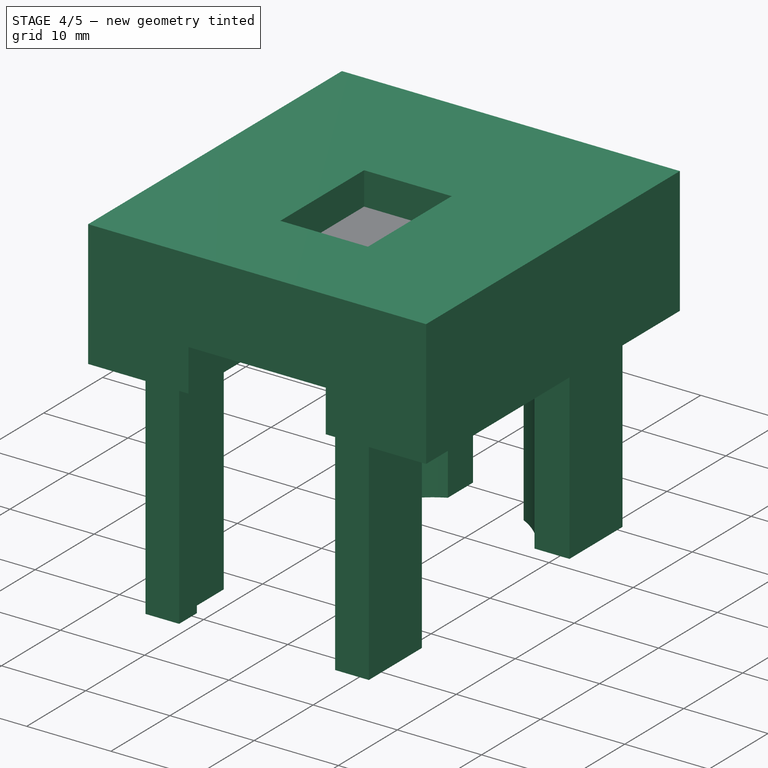
[diagram: stage 4 of 5 — iso view after this stage's code; geometry added in this stage tinted green]
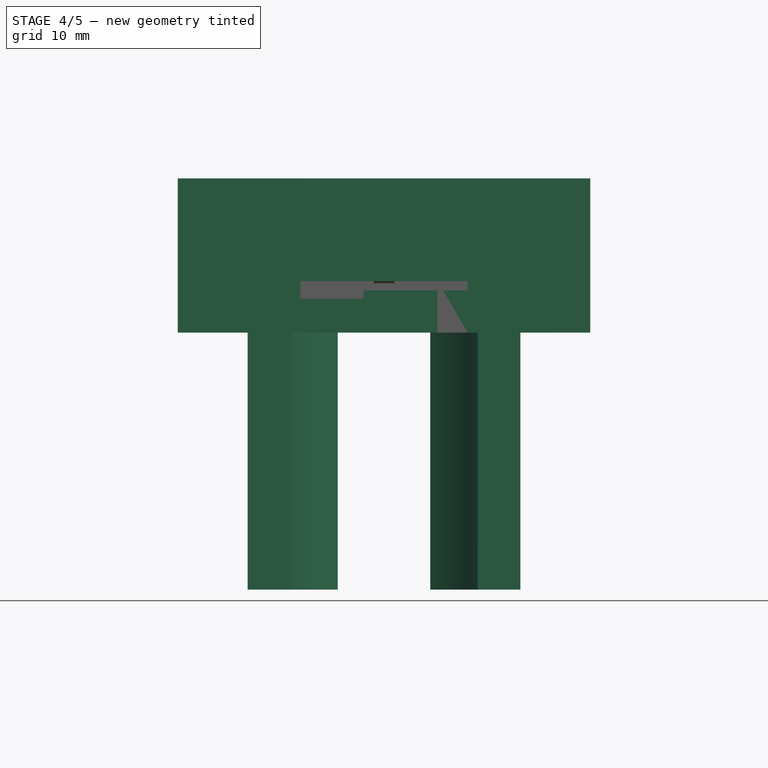
[diagram: stage 4 of 5 — front view after this stage's code; geometry added in this stage tinted green]
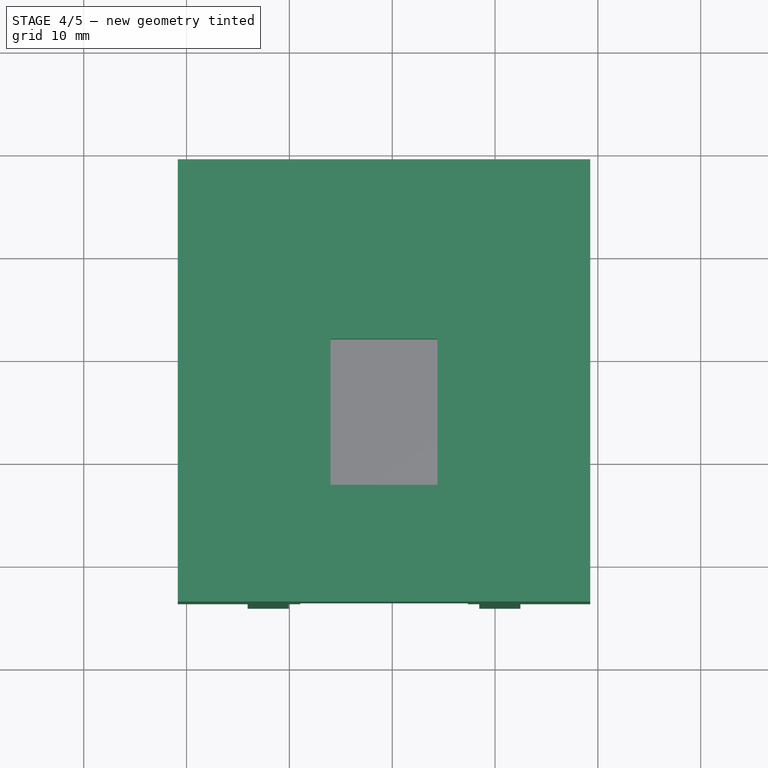
[diagram: stage 4 of 5 — top view after this stage's code; geometry added in this stage tinted green]
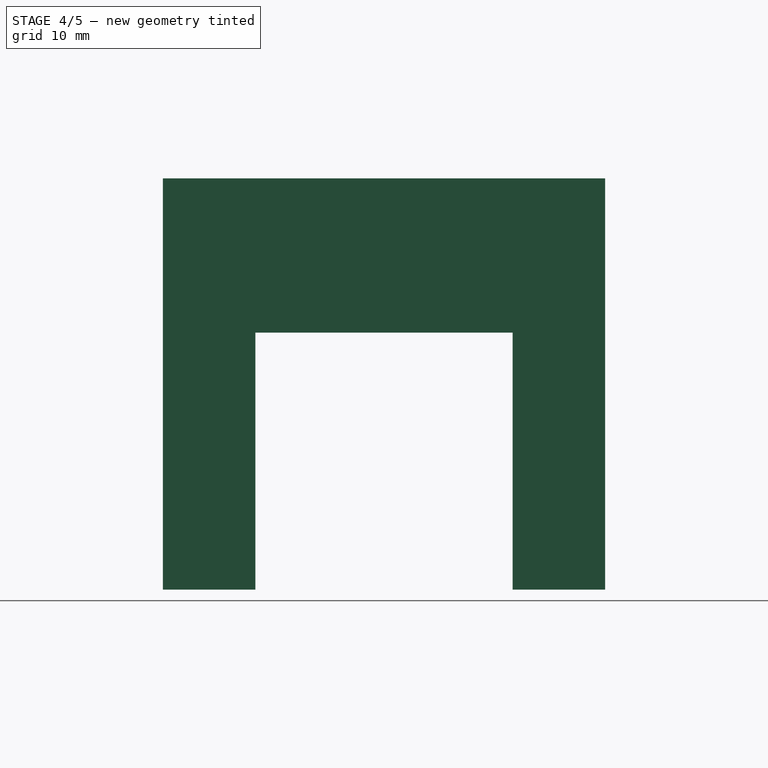
[diagram: stage 4 of 5 — right view after this stage's code; geometry added in this stage tinted green]
FEATURE [PartDesign::SubtractivePrism] Prism001
  AttacherType = Attacher::AttachEngine3D
  AttachmentOffset = pos=(7.5,1,0) rot=(0,1,0;1.5708rad)
  BaseFeature = -> Prism
  Circumradius = 0.4
  FirstAngle = 0
  Height = 3
  MapMode = 6
  Placement = pos=(7.5,3.8e-15,2.9) rot=(-0.57735,0.57735,-0.57735;2.0944rad)
  Polygon = 6
  SecondAngle = 0
  Support = -> [Prism]
  expr: .AttachmentOffset.Base.x = Spreadsheet.pcb_w / 2 - 1.5
FEATURE [PartDesign::ShapeBinder] ReferencePrism001
  Placement = pos=(10.4,-7.49997,-31.8) rot=(0.577351,-0.577351,0.577349;2.0944rad)
  Support = -> [Prism001]
  TraceSupport = false
FEATURE [Sketcher::SketchObject] Sketch013
  ExternalGeometry = -> [ReferencePrism001]
  FullyConstrained = true
  MapMode = 5
  Placement = pos=(10.4,-7.49997,-2.3) rot=(1,0,0;3.14159rad)
  Support = -> [ReferencePrism001]
  expr: .Constraints.wall_width = Spreadsheet.programmer_wall_width
  expr: Constraints[12] = Spreadsheet.programmer_clearance
  expr: Constraints[13] = Spreadsheet.programmer_clearance
  expr: Constraints[35] = Spreadsheet.programmer_wall_width
  expr: Constraints[37] = 2 * Spreadsheet.programmer_wall_width
  expr: Constraints[54] = .Constraints.wall_width
  expr: Constraints[55] = Spreadsheet.programmer_wall_width + Spreadsheet.pcb_w / 3
  expr: Constraints[56] = Spreadsheet.programmer_wall_width
  expr: Constraints[89] = Spreadsheet.pcb_w / 2
  sketch-geometry (34):
    g0: LineSegment StartX=-11.46 StartY=-6.43997 StartZ=0 EndX=9.06 EndY=-6.43997 EndZ=0
    g1: LineSegment StartX=9.06 StartY=-6.43997 StartZ=0 EndX=9.06 EndY=-33.2 EndZ=0
    g2: LineSegment StartX=-11.46 StartY=-6.43997 StartZ=0 EndX=-11.46 EndY=-33.2 EndZ=0
    g3: LineSegment StartX=-11.46 StartY=-33.2 StartZ=0 EndX=9.06 EndY=-33.2 EndZ=0
    g4: ArcOfCircle CenterX=-1.2 CenterY=-33.2 CenterZ=0 NormalX=0 NormalY=0 NormalZ=1 AngleXU=0 Radius=10.26 StartAngle=3.14159 EndAngle=6.28319
    g5: LineSegment StartX=9.06 StartY=-12.44 StartZ=0 EndX=12.06 EndY=-12.44 EndZ=0
    g6: LineSegment StartX=12.06 StartY=-12.44 StartZ=0 EndX=12.06 EndY=-3.43997 EndZ=0
    g7: LineSegment StartX=12.06 StartY=-3.43997 StartZ=0 EndX=-14.46 EndY=-3.43997 EndZ=0
    g8: LineSegment StartX=-14.46 StartY=-3.43997 StartZ=0 EndX=-14.46 EndY=-12.44 EndZ=0
    g9: LineSegment StartX=9.06 StartY=-12.44 StartZ=0 EndX=-11.46 EndY=-12.44 EndZ=0
    g10: LineSegment StartX=-11.46 StartY=-12.44 StartZ=0 EndX=-14.46 EndY=-12.44 EndZ=0
    g11: LineSegment StartX=9.06 StartY=-12.44 StartZ=0 EndX=9.06 EndY=-6.43997 EndZ=0
    g12: LineSegment StartX=-11.46 StartY=-12.44 StartZ=0 EndX=-11.46 EndY=-6.43997 EndZ=0
    g13: LineSegment StartX=-1.2 StartY=-6.43997 StartZ=0 EndX=-1.2 EndY=-3.43997 EndZ=0
    g14: LineSegment StartX=7.91351 StartY=-37.46 StartZ=0 EndX=12.06 EndY=-37.46 EndZ=0
    g15: LineSegment StartX=12.06 StartY=-37.46 StartZ=0 EndX=12.06 EndY=-46.46 EndZ=0
    g16: LineSegment StartX=12.06 StartY=-46.46 StartZ=0 EndX=-14.46 EndY=-46.46 EndZ=0
    g17: LineSegment StartX=7.91351 StartY=-37.46 StartZ=0 EndX=-10.3135 EndY=-37.46 EndZ=0
    g18: LineSegment StartX=-10.3135 StartY=-37.46 StartZ=0 EndX=-14.46 EndY=-37.46 EndZ=0
    g19: LineSegment StartX=-14.46 StartY=-37.46 StartZ=0 EndX=-14.46 EndY=-46.46 EndZ=0
    g20: LineSegment StartX=-1.2 StartY=-6.43997 StartZ=0 EndX=-1.2 EndY=-46.46 EndZ=0
    g21: GeomPoint X=-1.2 Y=-43.46 Z=0
    g22: ArcOfCircle CenterX=-1.2 CenterY=-33.2 CenterZ=0 NormalX=0 NormalY=0 NormalZ=1 AngleXU=0 Radius=10.06 StartAngle=3.57885 EndAngle=4.24863
    g23: LineSegment StartX=-14.46 StartY=-3.43997 StartZ=0 EndX=-10.46 EndY=-3.43997 EndZ=0
    g24: LineSegment StartX=-10.46 StartY=-3.43997 StartZ=0 EndX=-10.46 EndY=-6.43997 EndZ=0
    g25: LineSegment StartX=-10.46 StartY=-6.43997 StartZ=0 EndX=-11.46 EndY=-6.43997 EndZ=0
    g26: LineSegment StartX=12.06 StartY=-3.43997 StartZ=0 EndX=8.06 EndY=-3.43997 EndZ=0
    g27: LineSegment StartX=8.06 StartY=-3.43997 StartZ=0 EndX=8.06 EndY=-6.43997 EndZ=0
    g28: LineSegment StartX=8.06 StartY=-6.43997 StartZ=0 EndX=9.06 EndY=-6.43997 EndZ=0
    g29: LineSegment StartX=-5.7 StartY=-42.1974 StartZ=0 EndX=-5.7 EndY=-46.46 EndZ=0
    g30: LineSegment StartX=-5.7 StartY=-46.46 StartZ=0 EndX=-14.46 EndY=-46.46 EndZ=0
    g31: ArcOfCircle CenterX=-1.2 CenterY=-33.2 CenterZ=0 NormalX=0 NormalY=0 NormalZ=1 AngleXU=0 Radius=10.06 StartAngle=5.17615 EndAngle=5.84592
    g32: LineSegment StartX=3.3 StartY=-42.1974 StartZ=0 EndX=3.3 EndY=-46.46 EndZ=0
    g33: LineSegment StartX=3.3 StartY=-46.46 StartZ=0 EndX=12.06 EndY=-46.46 EndZ=0
  constraints (90):
    c: Horizontal(g0)
    c: Coincident(g1,g0)
    c: Vertical(g1)
    c: Coincident(g2,g0)
    c: Vertical(g2)
    c: Coincident(g3,g2)
    c: Coincident(g3,g1)
    c: Horizontal(g3)
    c: PointOnObject(g-5,g3)
    c: Coincident(g4,g-5)
    c: Coincident(g4,g1)
    c: Coincident(g4,g2)
    c: DistanceX(g-4,g0) = 0.2
    c: DistanceY(g-4,g0) = 0.2
    c: PointOnObject(g5,g1)
    c: Horizontal(g5)
    c: Coincident(g6,g5)
    c: Vertical(g6)
    c: Coincident(g7,g6)
    c: Horizontal(g7)
    c: Coincident(g8,g7)
    c: Vertical(g8)
    c: Coincident(g9,g5)
    c: PointOnObject(g9,g2)
    c: Horizontal(g9)
    c: Coincident(g10,g9)
    c: Coincident(g10,g8)
    c: Horizontal(g10)
    c: Coincident(g11,g5)
    c: Coincident(g11,g0)
    c: Coincident(g12,g10)
    c: Coincident(g12,g0)
    c: Symmetric(g0,g0,g13)
    c: Symmetric(g7,g7,g13)
    c: Vertical(g13)
    c: DistanceY(g0,g7) = 3
    c: DistanceX(g7,g0) = 3  'wall_width'
    c: DistanceY(g10,g0) = 6
    c: Horizontal(g14)
    c: Coincident(g15,g14)
    c: Vertical(g15)
    c: Coincident(g16,g15)
    c: Horizontal(g16)
    c: Coincident(g17,g14)
    c: Horizontal(g17)
    c: Horizontal(g18)
    c: Coincident(g19,g18)
    c: Coincident(g19,g16)
    c: Vertical(g19)
    c: Coincident(g20,g13)
    c: Vertical(g20)
    c: Symmetric(g16,g16,g20)
    c: PointOnObject(g21,g20)
    c: PointOnObject(g21,g4)
    c: DistanceX(g18,g2) = 3
    c: DistanceY(g19,g19) = 9
    c: DistanceY(g20,g21) = 3
    c: Coincident(g23,g8)
    c: PointOnObject(g23,g7)
    c: Coincident(g24,g23)
    c: PointOnObject(g24,g0)
    c: Vertical(g24)
    c: Coincident(g25,g24)
    c: Coincident(g25,g12)
    c: Coincident(g26,g6)
    c: Coincident(g27,g26)
    c: PointOnObject(g27,g0)
    c: Vertical(g27)
    c: Coincident(g28,g27)
    c: Coincident(g28,g11)
    c: Symmetric(g23,g26,g13)
    c: DistanceX(g12,g24) = 1
    c: PointOnObject(g18,g-5)
    c: Coincident(g22,g18)
    c: Coincident(g22,g4)
    c: Coincident(g17,g18)
    c: Coincident(g29,g22)
    c: PointOnObject(g29,g16)
    c: Vertical(g29)
    c: Coincident(g30,g29)
    c: Coincident(g30,g19)
    c: PointOnObject(g14,g-5)
    c: Coincident(g31,g22)
    c: Coincident(g31,g14)
    c: Coincident(g32,g31)
    c: Vertical(g32)
    c: Coincident(g33,g32)
    c: Coincident(g33,g15)
    c: Symmetric(g32,g29,g20)
    c: DistanceX(g29,g32) = 9
FEATURE [Sketcher::SketchObject] Sketch014
  ExternalGeometry = -> [ReferencePrism001]
  FullyConstrained = true
  MapMode = 5
  Placement = pos=(10.4,-7.49997,-2.3) rot=(1,0,0;3.14159rad)
  Support = -> [ReferencePrism001]
  expr: Constraints[15] = Spreadsheet.programmer_wall_width + Spreadsheet.programmer_clearance
  expr: Constraints[28] = Spreadsheet.programmer_wall_width + Spreadsheet.programmer_clearance
  sketch-geometry (10):
    g0: LineSegment StartX=-1.2 StartY=-6.63997 StartZ=0 EndX=-1.2 EndY=-43.26 EndZ=0
    g1: LineSegment StartX=18.86 StartY=-46.46 StartZ=0 EndX=18.86 EndY=-3.43997 EndZ=0
    g2: LineSegment StartX=18.86 StartY=-3.43997 StartZ=0 EndX=-21.26 EndY=-3.43997 EndZ=0
    g3: LineSegment StartX=-21.26 StartY=-3.43997 StartZ=0 EndX=-21.26 EndY=-46.46 EndZ=0
    g4: LineSegment StartX=-21.26 StartY=-46.46 StartZ=0 EndX=18.86 EndY=-46.46 EndZ=0
    g5: LineSegment StartX=18.86 StartY=-33.2 StartZ=0 EndX=-21.26 EndY=-33.2 EndZ=0
    g6: LineSegment StartX=-6.4 StartY=-29 StartZ=0 EndX=4 EndY=-29 EndZ=0
    g7: LineSegment StartX=4 StartY=-29 StartZ=0 EndX=4 EndY=-14.8 EndZ=0
    g8: LineSegment StartX=4 StartY=-14.8 StartZ=0 EndX=-6.4 EndY=-14.8 EndZ=0
    g9: LineSegment StartX=-6.4 StartY=-14.8 StartZ=0 EndX=-6.4 EndY=-29 EndZ=0
  constraints (29):
    c: PointOnObject(g0,g-4)
    c: Vertical(g0)
    c: Symmetric(g-3,g-3,g0)
    c: Vertical(g1)
    c: Coincident(g2,g1)
    c: Horizontal(g2)
    c: Coincident(g3,g2)
    c: Vertical(g3)
    c: Coincident(g4,g3)
    c: Coincident(g4,g1)
    c: Horizontal(g4)
    c: PointOnObject(g5,g1)
    c: PointOnObject(g5,g3)
    c: Horizontal(g5)
    c: Symmetric(g5,g5,g-4)
    c: DistanceY(g-3,g1) = 3.2
    c: DistanceX(g-3,g1) = 10
    c: Coincident(g6,g7)
    c: Coincident(g7,g8)
    c: Coincident(g8,g9)
    c: Coincident(g9,g6)
    c: Horizontal(g8)
    c: Vertical(g7)
    c: Vertical(g9)
    c: DistanceX(g-6,g7) = 1
    c: DistanceY(g-6,g7) = 8
    c: Symmetric(g6,g6,g0)
    c: DistanceY(g6,g-5) = 3.5
    c: DistanceY(g1,g0) = 3.2
FEATURE [PartDesign::Pad] Pad005
  Direction = (-1e-16,1e-16,-1)
  Length = 15
  Length2 = 100
  Placement = pos=(10.4,-7.49997,-31.8) rot=(0.577351,-0.577351,0.577349;2.0944rad)
  Profile = -> Sketch014
  Reversed = true
  Type = 0
FEATURE [PartDesign::Pad] Pad006
  BaseFeature = -> Pad005
  Direction = (-1e-16,1e-16,-1)
  Length = 25
  Length2 = 100
  Placement = pos=(10.4,-7.49997,-31.8) rot=(0.577351,-0.577351,0.577349;2.0944rad)
  Profile = -> Sketch013
  Type = 0
FEATURE [Sketcher::SketchObject] Sketch015
  ExternalGeometry = -> [ReferencePrism001]
  FullyConstrained = true
  MapMode = 5
  Placement = pos=(10.4,-4.06,-31.8) rot=(0.57735,-0.57735,0.57735;2.0944rad)
  Support = -> [Pad005]
  sketch-geometry (5):
    g0: LineSegment StartX=29.5 StartY=9.35 StartZ=0 EndX=29.5 EndY=-6.95 EndZ=0
    g1: LineSegment StartX=29.5 StartY=-6.95 StartZ=0 EndX=34.5 EndY=-6.95 EndZ=0
    g2: LineSegment StartX=34.5 StartY=-6.95 StartZ=0 EndX=34.5 EndY=9.35 EndZ=0
    g3: LineSegment StartX=34.5 StartY=9.35 StartZ=0 EndX=29.5 EndY=9.35 EndZ=0
    g4: GeomPoint X=29.5 Y=1.2 Z=0
  constraints (12):
    c: Horizontal(g1)
    c: Coincident(g2,g1)
    c: Vertical(g2)
    c: Coincident(g3,g2)
    c: Coincident(g3,g0)
    c: Horizontal(g3)
    c: DistanceX(g3,g3) = 5
    c: Coincident(g0,g1)
    c: Vertical(g0)
    c: Symmetric(g0,g0,g4)
    c: Symmetric(g-3,g-4,g4)
    c: DistanceY(g0,g0) = 16.3
FEATURE [PartDesign::Pocket] Pocket008
  BaseFeature = -> Pad006
  Direction = (2e-16,1,1e-16)
  Length = 14
  Length2 = 100
  Placement = pos=(10.4,-7.49997,-31.8) rot=(0.577351,-0.577351,0.577349;2.0944rad)
  Profile = -> Sketch015
  Type = 0
  expr: Length = 11 + Spreadsheet.programmer_wall_width
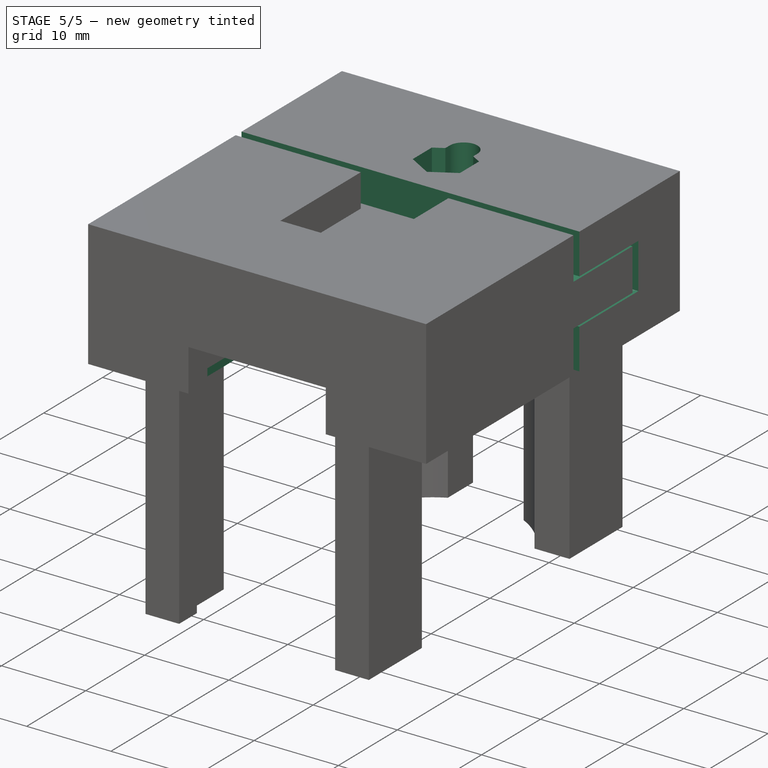
[diagram: stage 5 of 5 — iso view after this stage's code; geometry added in this stage tinted green]
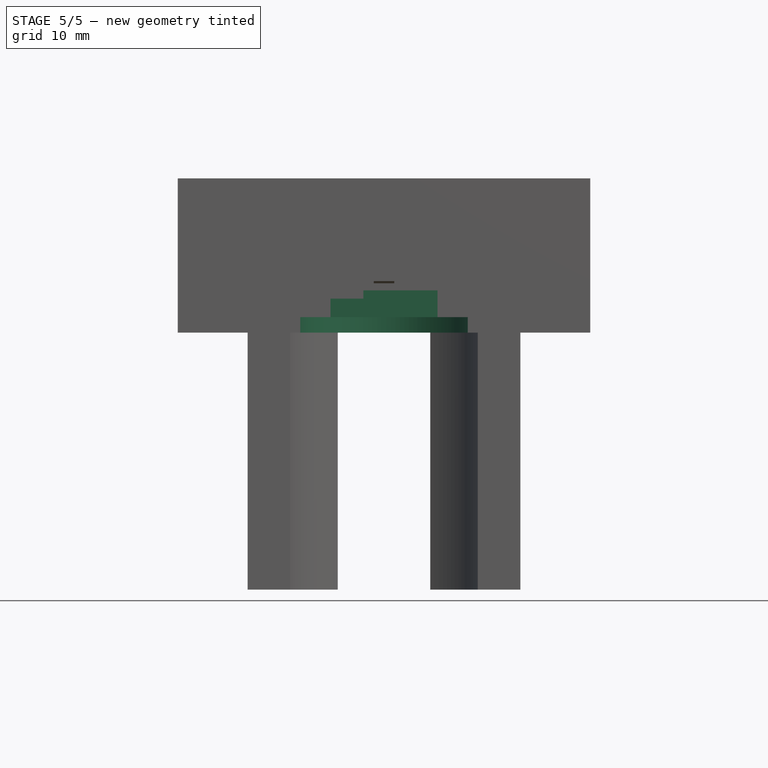
[diagram: stage 5 of 5 — front view after this stage's code; geometry added in this stage tinted green]
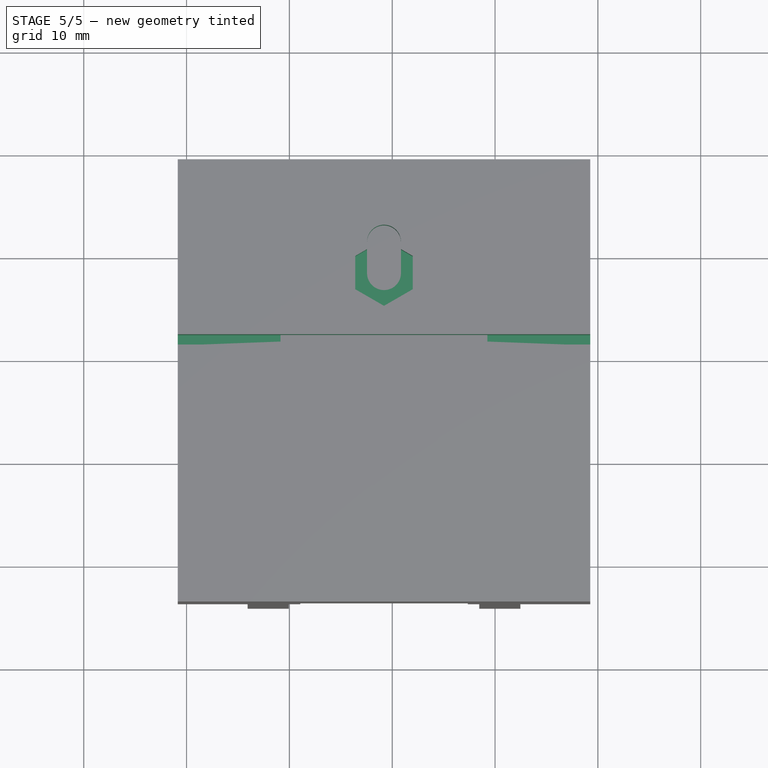
[diagram: stage 5 of 5 — top view after this stage's code; geometry added in this stage tinted green]
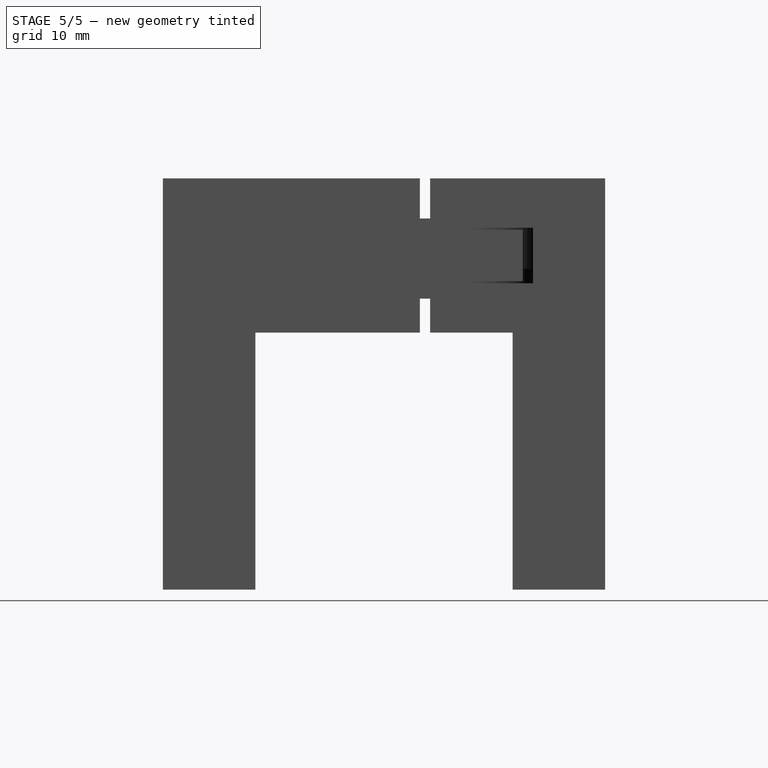
[diagram: stage 5 of 5 — right view after this stage's code; geometry added in this stage tinted green]
FEATURE [Sketcher::SketchObject] Sketch016
  ExternalGeometry = -> [Pad005]
  FullyConstrained = true
  MapMode = 5
  Placement = pos=(-10.86,-7.49997,-31.8) rot=(-0.707107,-1e-06,0.707107;3.14159rad)
  Support = -> [Pad005]
  expr: Constraints[30] = Spreadsheet.programmer_clearance
  expr: Constraints[31] = Spreadsheet.programmer_adjust_width
  expr: Constraints[32] = Spreadsheet.programmer_adjust_width
  expr: Constraints[33] = Spreadsheet.programmer_clearance
  expr: Constraints[34] = Spreadsheet.programmer_adjust_width
  sketch-geometry (18):
    g0: GeomPoint X=-29.5 Y=-28.4401 Z=0
    g1: LineSegment StartX=-29.5 StartY=-28.4401 StartZ=0 EndX=-44.5 EndY=-28.4401 EndZ=0
    g2: LineSegment StartX=-44.5 StartY=-28.4401 StartZ=0 EndX=-44.5 EndY=-3.44012 EndZ=0
    g3: LineSegment StartX=-29.5 StartY=-28.4401 StartZ=0 EndX=-34.5 EndY=-28.4401 EndZ=0
    g4: LineSegment StartX=-34.5 StartY=-28.4401 StartZ=0 EndX=-34.5 EndY=-38.4401 EndZ=0
    g5: LineSegment StartX=-34.5 StartY=-38.4401 StartZ=0 EndX=-39.5 EndY=-38.4401 EndZ=0
    g6: LineSegment StartX=-39.5 StartY=-38.4401 StartZ=0 EndX=-39.5 EndY=-28.4401 EndZ=0
    g7: LineSegment StartX=-39.5 StartY=-28.4401 StartZ=0 EndX=-44.5 EndY=-28.4401 EndZ=0
    g8: LineSegment StartX=-29.5 StartY=-3.44007 StartZ=0 EndX=-29.5 EndY=-28.4401 EndZ=0
    g9: LineSegment StartX=-39.7 StartY=-29.4401 StartZ=0 EndX=-39.7 EndY=-39.4401 EndZ=0
    g10: LineSegment StartX=-39.7 StartY=-39.4401 StartZ=0 EndX=-34.3 EndY=-39.4401 EndZ=0
    g11: LineSegment StartX=-34.3 StartY=-39.4401 StartZ=0 EndX=-34.3 EndY=-29.4401 EndZ=0
    g12: LineSegment StartX=-39.7 StartY=-29.4401 StartZ=0 EndX=-47.5 EndY=-29.4401 EndZ=0
    g13: LineSegment StartX=-29.5 StartY=-28.4401 StartZ=0 EndX=-26.5 EndY=-28.4401 EndZ=0
    g14: LineSegment StartX=-26.5 StartY=-28.4401 StartZ=0 EndX=-26.5 EndY=-29.4401 EndZ=0
    g15: LineSegment StartX=-26.5 StartY=-29.4401 StartZ=0 EndX=-34.3 EndY=-29.4401 EndZ=0
    g16: LineSegment StartX=-44.5 StartY=-28.4401 StartZ=0 EndX=-47.5 EndY=-28.4401 EndZ=0
    g17: LineSegment StartX=-47.5 StartY=-28.4401 StartZ=0 EndX=-47.5 EndY=-29.4401 EndZ=0
  constraints (49):
    c: Coincident(g1,g0)
    c: Horizontal(g1)
    c: Coincident(g2,g1)
    c: Coincident(g2,g-5)
    c: Vertical(g2)
    c: Coincident(g3,g0)
    c: PointOnObject(g3,g1)
    c: Coincident(g4,g3)
    c: Vertical(g4)
    c: Coincident(g5,g4)
    c: Horizontal(g5)
    c: Coincident(g6,g5)
    c: PointOnObject(g6,g1)
    c: Coincident(g7,g6)
    c: Coincident(g7,g1)
    c: Vertical(g6)
    c: Equal(g7,g3)
    c: Equal(g7,g5)
    c: DistanceY(g6,g6) = 10
    c: DistanceY(g3,g-3) = 25
    c: Coincident(g8,g-3)
    c: Coincident(g8,g3)
    c: Vertical(g8)
    c: Vertical(g9)
    c: Coincident(g10,g9)
    c: Horizontal(g10)
    c: Coincident(g11,g10)
    c: Vertical(g11)
    c: Coincident(g12,g9)
    c: Horizontal(g12)
    c: DistanceX(g4,g10) = 0.2
    c: DistanceY(g15,g3) = 1
    c: DistanceY(g10,g4) = 1
    c: DistanceX(g9,g5) = 0.2
    c: DistanceY(g12,g7) = 1
    c: Coincident(g13,g3)
    c: Horizontal(g13)
    c: Coincident(g14,g13)
    c: Vertical(g14)
    c: Coincident(g15,g14)
    c: Horizontal(g15)
    c: DistanceX(g13,g13) = 3
    c: Coincident(g15,g11)
    c: Coincident(g16,g7)
    c: Horizontal(g16)
    c: Coincident(g17,g16)
    c: Vertical(g17)
    c: Coincident(g12,g17)
    c: DistanceX(g16,g16) = 3
FEATURE [Part::Extrusion] Extrude
  Base = -> Sketch016
  Dir = (-1,3e-16,3e-16)
  DirMode = 2
  FaceMakerClass = Part::FaceMakerBullseye
  LengthFwd = 50
  LengthRev = 10
  Reversed = true
  Solid = false
  Symmetric = false
FEATURE [Sketcher::SketchObject] Sketch017
  ExternalGeometry = -> [Sketch014,Sketch016]
  FullyConstrained = true
  MapMode = 5
  Placement = pos=(10.4,-7.49997,12.7) rot=(0,0,1;3.14159rad)
  Support = -> [Pad005]
  sketch-geometry (6):
    g0: LineSegment StartX=1.2 StartY=-29 StartZ=0 EndX=1.2 EndY=-35.4399 EndZ=0
    g1: ArcOfCircle CenterX=1.2 CenterY=-35.4399 CenterZ=0 NormalX=0 NormalY=0 NormalZ=1 AngleXU=0 Radius=1.65 StartAngle=2.7543e-12 EndAngle=3.14159
    g2: ArcOfCircle CenterX=1.2 CenterY=-38.4399 CenterZ=0 NormalX=0 NormalY=0 NormalZ=1 AngleXU=0 Radius=1.65 StartAngle=3.14159 EndAngle=6.28319
    g3: LineSegment StartX=-0.45 StartY=-35.4399 StartZ=0 EndX=-0.45 EndY=-38.4399 EndZ=0
    g4: LineSegment StartX=2.85 StartY=-35.4399 StartZ=0 EndX=2.85 EndY=-38.4399 EndZ=0
    g5: LineSegment StartX=21.26 StartY=-38.4399 StartZ=0 EndX=1.2 EndY=-38.4399 EndZ=0
  constraints (14):
    c: Vertical(g0)
    c: Symmetric(g-4,g-3,g0)
    c: Tangent(g1,g4) = 1.5708
    c: Tangent(g1,g3) = -1.5708
    c: Tangent(g3,g2) = -1.5708
    c: Tangent(g4,g2) = 1.5708
    c: Vertical(g3)
    c: Equal(g1,g2)
    c: Coincident(g1,g0)
    c: DistanceX(g1,g1) = 3.3
    c: DistanceY(g2,g0) = 3
    c: Coincident(g5,g-6)
    c: Coincident(g5,g2)
    c: Horizontal(g5)
FEATURE [Sketcher::SketchObject] Sketch018
  ExternalGeometry = -> [Sketch017]
  FullyConstrained = true
  MapMode = 5
  Placement = pos=(10.4,-7.49997,12.7) rot=(0,0,1;3.14159rad)
  Support = -> [Pad005]
  sketch-geometry (8):
    g0: LineSegment StartX=1.2 StartY=-32.2068 StartZ=0 EndX=-1.6 EndY=-33.8234 EndZ=0
    g1: LineSegment StartX=-1.6 StartY=-33.8234 StartZ=0 EndX=-1.6 EndY=-37.0565 EndZ=0
    g2: LineSegment StartX=-1.6 StartY=-37.0565 StartZ=0 EndX=1.2 EndY=-38.6731 EndZ=0
    g3: LineSegment StartX=1.2 StartY=-38.6731 StartZ=0 EndX=4 EndY=-37.0565 EndZ=0
    g4: LineSegment StartX=4 StartY=-37.0565 StartZ=0 EndX=4 EndY=-33.8234 EndZ=0
    g5: LineSegment StartX=4 StartY=-33.8234 StartZ=0 EndX=1.2 EndY=-32.2068 EndZ=0
    g6: Circle CenterX=1.2 CenterY=-35.4399 CenterZ=0 NormalX=0 NormalY=0 NormalZ=1 AngleXU=0 Radius=3.23316
    g7: Circle CenterX=1.2 CenterY=-35.4399 CenterZ=0 NormalX=0 NormalY=0 NormalZ=1 AngleXU=0 Radius=2.8
  constraints (18):
    c: Coincident(g0,g1)
    c: Coincident(g1,g2)
    c: Coincident(g2,g3)
    c: Coincident(g3,g4)
    c: Coincident(g4,g5)
    c: Coincident(g5,g0)
    c: Equal(g0, g1-g5) x5
    c: PointOnObject(g0,g6)
    c: PointOnObject(g1,g6)
    c: PointOnObject(g2,g6)
    c: PointOnObject(g3,g6)
    c: PointOnObject(g4,g6)
    c: PointOnObject(g5,g6)
    c: Coincident(g7,g6)
    c: Tangent(g7,g5)
    c: Diameter(g7) = 5.6
    c: Vertical(g1)
    c: Coincident(g6,g-3)
FEATURE [PartDesign::Pocket] Pocket009
  BaseFeature = -> Pocket008
  Direction = (-2e-16,-1e-16,-1)
  Length = 5
  Length2 = 100
  Placement = pos=(10.4,-7.49997,-31.8) rot=(0.577351,-0.577351,0.577349;2.0944rad)
  Profile = -> Sketch017
  Type = 1
FEATURE [PartDesign::Pocket] Pocket010
  BaseFeature = -> Pocket009
  Direction = (-2e-16,-1e-16,-1)
  Length = 3
  Length2 = 100
  Placement = pos=(10.4,-7.49997,-31.8) rot=(0.577351,-0.577351,0.577349;2.0944rad)
  Profile = -> Sketch018
  Type = 0
FEATURE [Sketcher::SketchObject] Sketch019
  ExternalGeometry = -> [Sketch014]
  FullyConstrained = true
  MapMode = 5
  Placement = pos=(10.4,-7.49997,-2.3) rot=(1,0,0;3.14159rad)
  Support = -> [ReferencePrism001]
  expr: Constraints[11] = Spreadsheet.programmer_wall_width + Spreadsheet.programmer_clearance
  expr: Constraints[9] = Spreadsheet.programmer_wall_width + Spreadsheet.programmer_clearance
  sketch-geometry (9):
    g0: GeomPoint X=-1.2 Y=-46.46 Z=0
    g1: LineSegment StartX=-10.125 StartY=-43.26 StartZ=0 EndX=7.725 EndY=-43.26 EndZ=0
    g2: LineSegment StartX=7.725 StartY=-34.335 StartZ=0 EndX=7.725 EndY=-6.63997 EndZ=0
    g3: LineSegment StartX=-10.125 StartY=-34.335 StartZ=0 EndX=-10.125 EndY=-6.63997 EndZ=0
    g4: LineSegment StartX=7.725 StartY=-6.63997 StartZ=0 EndX=-10.125 EndY=-6.63997 EndZ=0
    g5: LineSegment StartX=-1.2 StartY=-46.46 StartZ=0 EndX=-1.2 EndY=-43.26 EndZ=0
    g6: ArcOfCircle CenterX=-1.2 CenterY=-34.335 CenterZ=0 NormalX=0 NormalY=0 NormalZ=1 AngleXU=0 Radius=8.925 StartAngle=3.14159 EndAngle=6.28319
    g7: LineSegment StartX=7.725 StartY=-34.335 StartZ=0 EndX=7.725 EndY=-43.26 EndZ=0
    g8: LineSegment StartX=-10.125 StartY=-34.335 StartZ=0 EndX=-10.125 EndY=-43.26 EndZ=0
  constraints (22):
    c: Symmetric(g-3,g-4,g0)
    c: Horizontal(g1)
    c: Vertical(g2)
    c: Vertical(g3)
    c: Coincident(g4,g2)
    c: Coincident(g4,g3)
    c: Horizontal(g4)
    c: Coincident(g5,g0)
    c: Vertical(g5)
    c: DistanceY(g5,g5) = 3.2
    c: Symmetric(g1,g1,g5)
    c: DistanceY(g3,g-5) = 3.2
    c: DistanceX(g1,g1) = 17.85
    c: Tangent(g2,g6) = -1.5708
    c: Tangent(g3,g6) = 1.5708
    c: Coincident(g7,g2)
    c: Coincident(g7,g1)
    c: Vertical(g7)
    c: Coincident(g8,g3)
    c: Coincident(g8,g1)
    c: Vertical(g8)
    c: PointOnObject(g5,g6)
FEATURE [PartDesign::Pocket] Pocket011
  BaseFeature = -> Pocket010
  Direction = (1e-16,-1e-16,1)
  Length = 1.5
  Length2 = 100
  Placement = pos=(10.4,-7.49997,-31.8) rot=(0.577351,-0.577351,0.577349;2.0944rad)
  Profile = -> Sketch019
  Type = 0
FEATURE [PartDesign::Body] Body002  label="Programmer"
  Group = -> [ReferencePrism001,Sketch013,Sketch014,Pad005,Pad006,Sketch015,Pocket008,Sketch016,Sketch017,Sketch018,Pocket009,Pocket010,Sketch019,Pocket011]
  Origin = -> Origin003
  Tip = -> Pocket011
FEATURE [Part::FeaturePython] Slice  # WARN: FeaturePython — macro-defined, semantics opaque (R4)
  Base = -> Body002
  Mode = 1
  Tolerance = 0
  Tools = -> [Extrude]
FEATURE [Part::FeaturePython] CompoundFilter  label="Programming-Adapter"  # WARN: FeaturePython — macro-defined, semantics opaque (R4)
  Base = -> Slice
  FilterType = 1
  Invert = false
  OverrideMaxVal = 0
  WindowFrom = 80
  WindowTo = 100
  items = 2;0
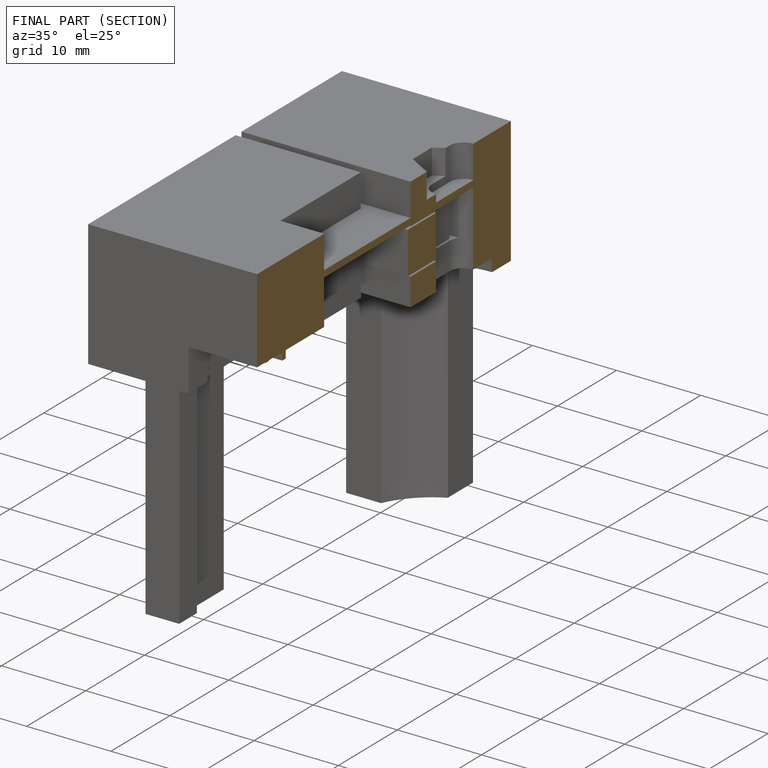
[diagram: finished part — half-section view (interior)]
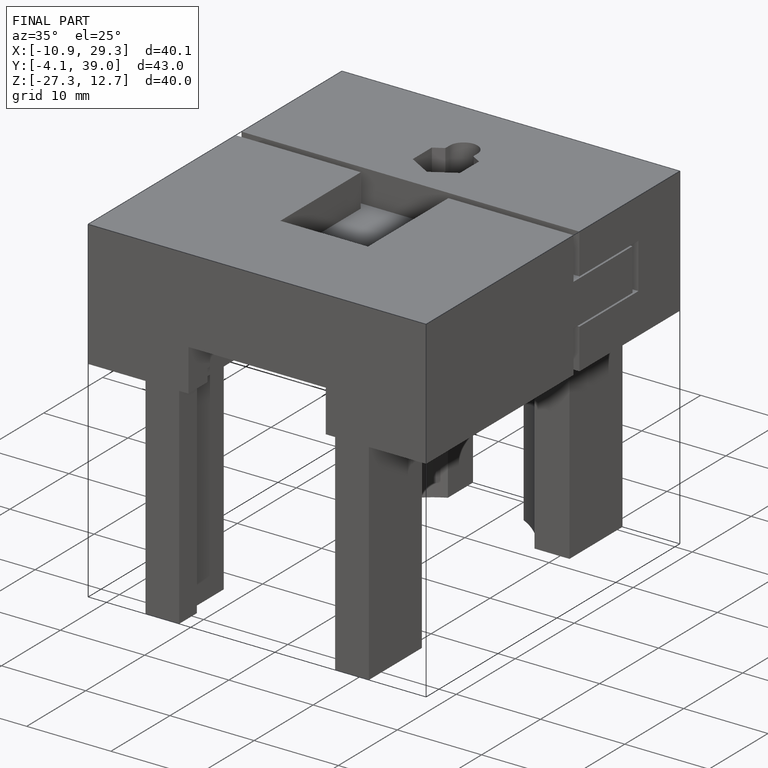
[diagram: finished part — iso view with bounding-box wireframe]
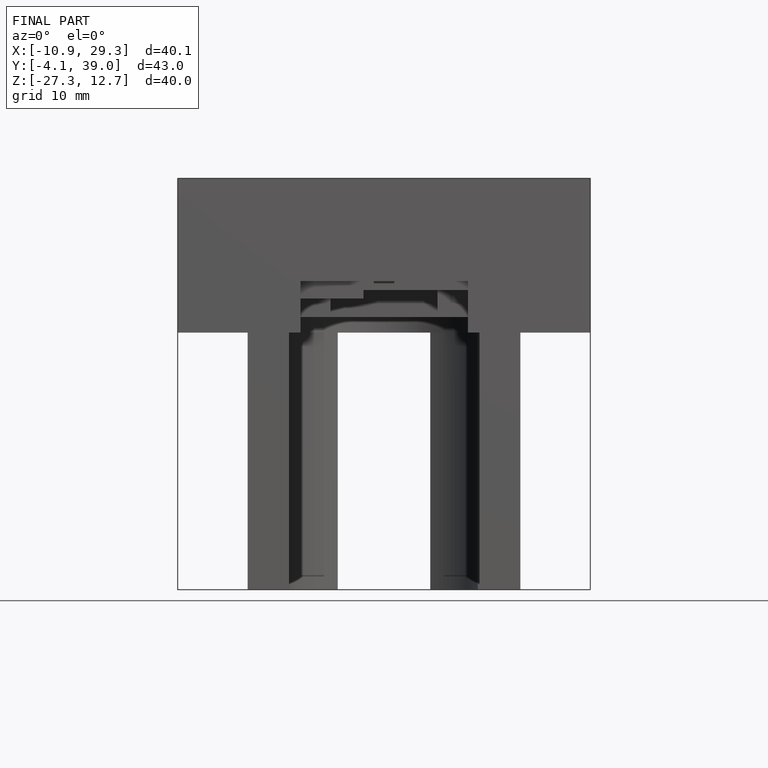
[diagram: finished part — front view with bounding-box wireframe]
